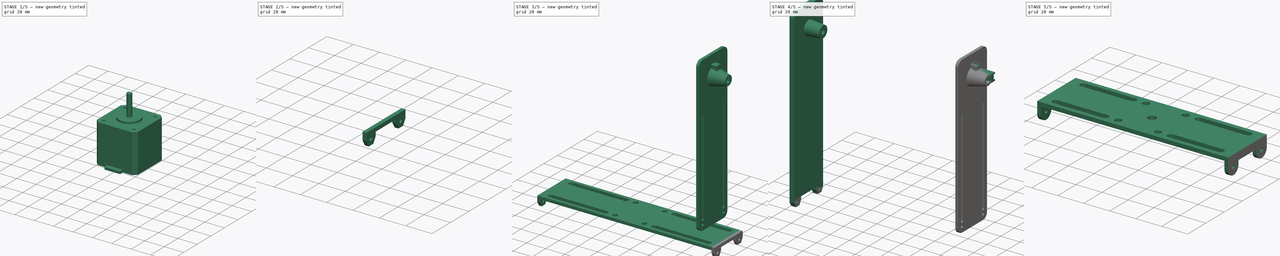
[diagram: build sequence overview — one tinted view per stage of 5, left to right]
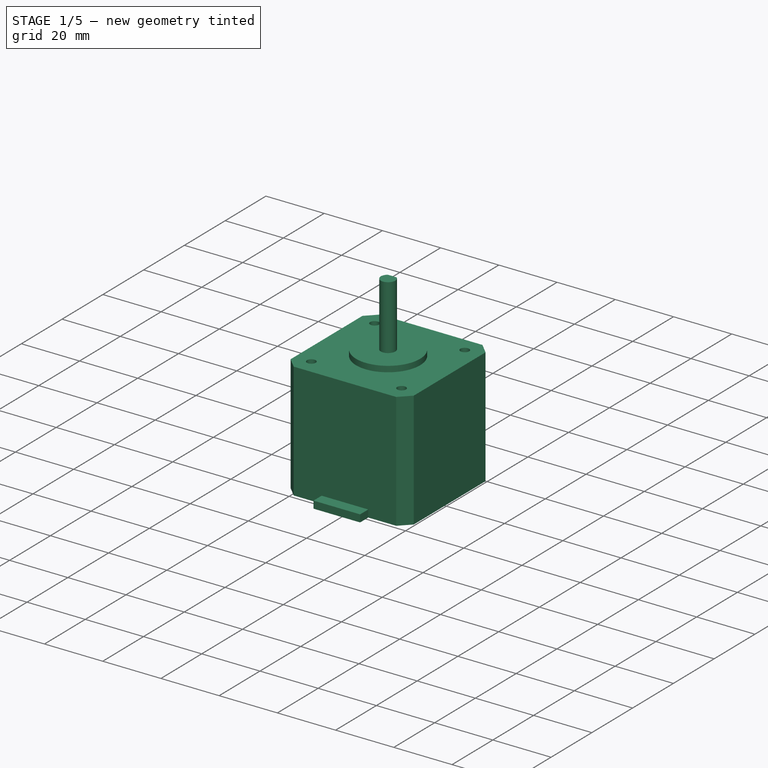
[diagram: stage 1 of 5 — iso view after this stage's code; geometry added in this stage tinted green]
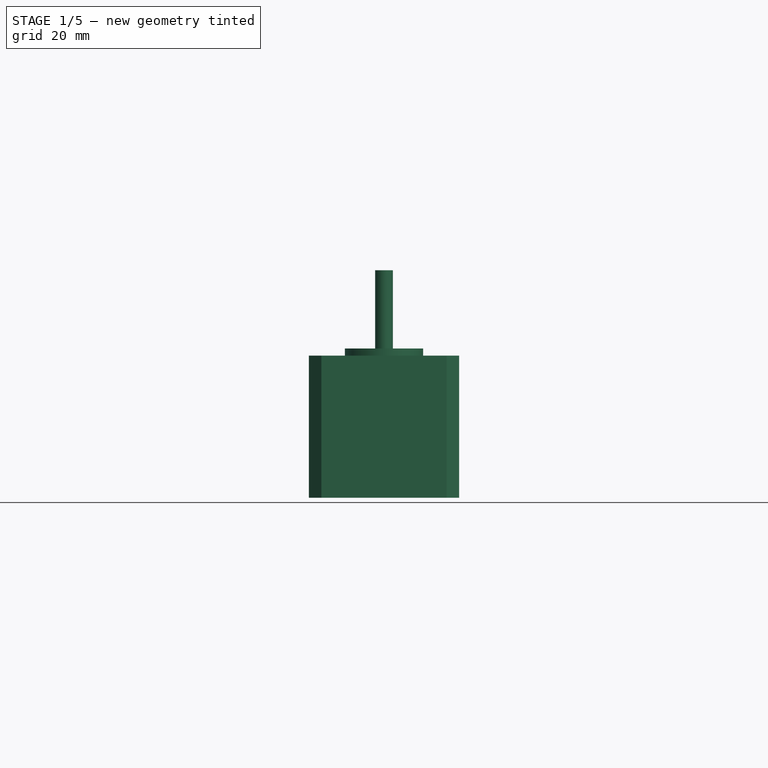
[diagram: stage 1 of 5 — front view after this stage's code; geometry added in this stage tinted green]
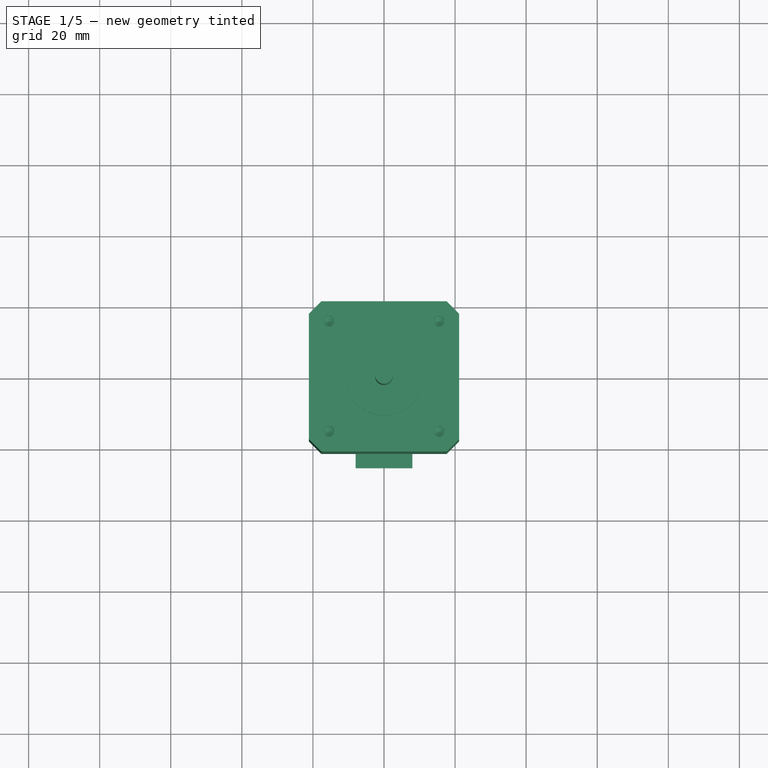
[diagram: stage 1 of 5 — top view after this stage's code; geometry added in this stage tinted green]
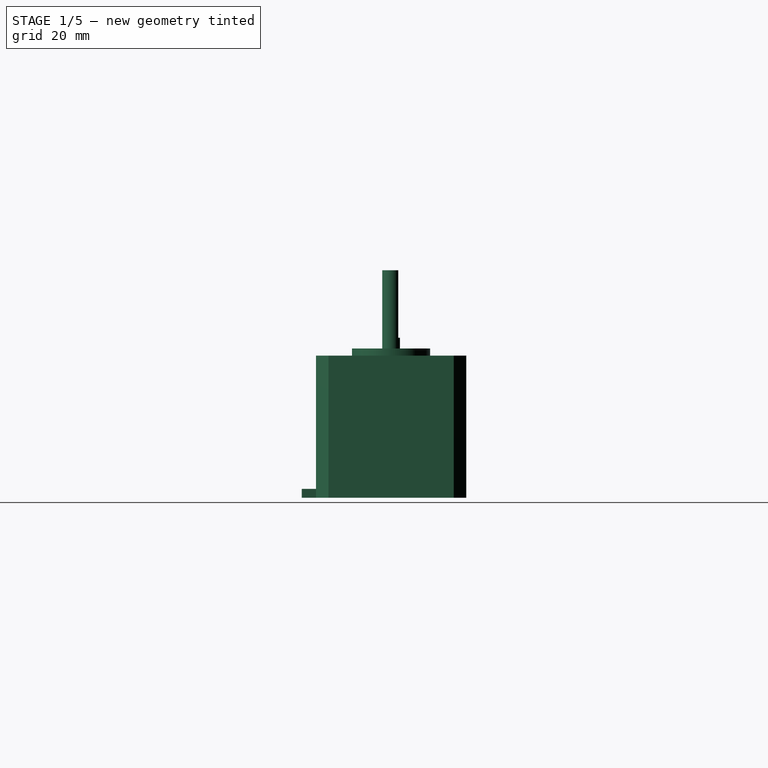
[diagram: stage 1 of 5 — right view after this stage's code; geometry added in this stage tinted green]
FCSTD DOCUMENT  (FreeCAD 0.21R33668 +26 (Git))
Label: elevation-rotation-table-save
License: All rights reserved
LicenseURL: http://en.wikipedia.org/wiki/All_rights_reserved
objects: Sketcher::SketchObject×41, PartDesign::SubShapeBinder×20, PartDesign::Pad×18, PartDesign::Body×7, PartDesign::Pocket×7, PartDesign::AdditiveLoft×4, PartDesign::Hole×2, PartDesign::Fillet×2, PartDesign::Plane×2, PartDesign::Mirrored×2, PartDesign::PolarPattern×1, PartDesign::SubtractiveLoft×1
note: 141 computed .brp shape members not serialized (recipe doc carries the construction recipe); baked Part::Feature solids carry a one-line shape summary decoded from their .brp

FEATURE [Sketcher::SketchObject] Sketch017
  FullyConstrained = true
  MapMode = 5
  Support = -> [XY_Plane004]
  sketch-geometry (18):
    g0: LineSegment StartX=-17.6145 StartY=21.15 StartZ=0 EndX=17.6145 EndY=21.15 EndZ=0
    g1: LineSegment StartX=17.6145 StartY=21.15 StartZ=0 EndX=21.15 EndY=17.6145 EndZ=0
    g2: LineSegment StartX=21.15 StartY=17.6145 StartZ=0 EndX=21.15 EndY=-17.6145 EndZ=0
    g3: LineSegment StartX=21.15 StartY=-17.6145 StartZ=0 EndX=17.6145 EndY=-21.15 EndZ=0
    g4: LineSegment StartX=17.6145 StartY=-21.15 StartZ=0 EndX=-17.6145 EndY=-21.15 EndZ=0
    g5: LineSegment StartX=-17.6145 StartY=-21.15 StartZ=0 EndX=-21.15 EndY=-17.6145 EndZ=0
    g6: LineSegment StartX=-21.15 StartY=-17.6145 StartZ=0 EndX=-21.15 EndY=17.6145 EndZ=0
    g7: LineSegment StartX=-21.15 StartY=17.6145 StartZ=0 EndX=-17.6145 EndY=21.15 EndZ=0
    g8: LineSegment StartX=-21.15 StartY=17.6145 StartZ=0 EndX=21.15 EndY=17.6145 EndZ=0
    g9: LineSegment StartX=-17.6145 StartY=-21.15 StartZ=0 EndX=-17.6145 EndY=21.15 EndZ=0
    g10: LineSegment StartX=17.6145 StartY=21.15 StartZ=0 EndX=17.6145 EndY=-21.15 EndZ=0
    g11: LineSegment StartX=21.15 StartY=-17.6145 StartZ=0 EndX=-21.15 EndY=-17.6145 EndZ=0
    g12: GeomPoint X=-17.6145 Y=17.6145 Z=0
    g13: GeomPoint X=17.6145 Y=17.6145 Z=0
    g14: GeomPoint X=17.6145 Y=-17.6145 Z=0
    g15: GeomPoint X=-17.6145 Y=-17.6145 Z=0
    g16: LineSegment StartX=-17.6145 StartY=17.6145 StartZ=0 EndX=17.6145 EndY=-17.6145 EndZ=0
    g17: LineSegment StartX=17.6145 StartY=17.6145 StartZ=0 EndX=-17.6145 EndY=-17.6145 EndZ=0
  constraints (44):
    c: Horizontal(g0)
    c: Coincident(g1,g0)
    c: Coincident(g2,g1)
    c: Vertical(g2)
    c: Coincident(g3,g2)
    c: Coincident(g4,g3)
    c: Horizontal(g4)
    c: Coincident(g5,g4)
    c: Coincident(g6,g5)
    c: Vertical(g6)
    c: Coincident(g7,g6)
    c: Coincident(g7,g0)
    c: Coincident(g8,g6)
    c: Coincident(g8,g1)
    c: Horizontal(g8)
    c: Coincident(g9,g4)
    c: Coincident(g9,g0)
    c: Vertical(g9)
    c: Distance(g8) = 42.3
    c: Distance(g9) = 42.3
    c: Equal(g3,g5)
    c: Equal(g1,g3)
    c: Equal(g7,g1)
    c: Coincident(g10,g0)
    c: Coincident(g10,g3)
    c: Vertical(g10)
    c: Coincident(g11,g2)
    c: Coincident(g11,g5)
    c: PointOnObject(g12,g8)
    c: PointOnObject(g13,g8)
    c: PointOnObject(g14,g11)
    c: PointOnObject(g15,g9)
    c: PointOnObject(g12,g9)
    c: PointOnObject(g14,g10)
    c: PointOnObject(g15,g11)
    c: Coincident(g16,g12)
    c: Coincident(g16,g14)
    c: Coincident(g17,g13)
    c: Coincident(g17,g15)
    c: PointOnObject(g-1,g16)
    c: PointOnObject(g13,g10)
    c: PointOnObject(g-1,g17)
    c: Equal(g2,g4)
    c: Distance(g1) = 5
FEATURE [PartDesign::Pad] Pad001
  Direction = (0,0,1)
  Length = 40
  Length2 = 10
  Profile = -> Sketch017
  ReferenceAxis = -> Sketch017 [N_Axis]
  Type = 0
FEATURE [Sketcher::SketchObject] Sketch018
  FullyConstrained = true
  MapMode = 5
  Placement = pos=(0,0,40) rot=(0,0,1;0rad)
  Support = -> [Pad001]
  sketch-geometry (10):
    g0: Circle CenterX=15.5 CenterY=15.5 CenterZ=0 NormalX=0 NormalY=0 NormalZ=1 AngleXU=0 Radius=1.5
    g1: Circle CenterX=-15.5 CenterY=15.5 CenterZ=0 NormalX=0 NormalY=0 NormalZ=1 AngleXU=0 Radius=1.5
    g2: Circle CenterX=-15.5 CenterY=-15.5 CenterZ=0 NormalX=0 NormalY=0 NormalZ=1 AngleXU=0 Radius=1.5
    g3: Circle CenterX=15.5 CenterY=-15.5 CenterZ=0 NormalX=0 NormalY=0 NormalZ=1 AngleXU=0 Radius=1.5
    g4: LineSegment StartX=-15.5 StartY=15.5 StartZ=0 EndX=15.5 EndY=15.5 EndZ=0
    g5: LineSegment StartX=15.5 StartY=15.5 StartZ=0 EndX=15.5 EndY=-15.5 EndZ=0
    g6: LineSegment StartX=15.5 StartY=-15.5 StartZ=0 EndX=-15.5 EndY=-15.5 EndZ=0
    g7: LineSegment StartX=-15.5 StartY=-15.5 StartZ=0 EndX=-15.5 EndY=15.5 EndZ=0
    g8: LineSegment StartX=-15.5 StartY=15.5 StartZ=0 EndX=15.5 EndY=-15.5 EndZ=0
    g9: LineSegment StartX=15.5 StartY=15.5 StartZ=0 EndX=-15.5 EndY=-15.5 EndZ=0
  constraints (24):
    c: Diameter(g0) = 3
    c: Equal(g1,g0)
    c: Equal(g1,g2)
    c: Equal(g0,g3)
    c: Coincident(g4,g5)
    c: Coincident(g5,g6)
    c: Coincident(g6,g7)
    c: Coincident(g7,g4)
    c: Horizontal(g4)
    c: Horizontal(g6)
    c: Vertical(g5)
    c: Vertical(g7)
    c: Coincident(g4,g1)
    c: Coincident(g5,g3)
    c: Coincident(g4,g0)
    c: Coincident(g6,g2)
    c: Distance(g4) = 31
    c: Coincident(g8,g1)
    c: Coincident(g8,g3)
    c: Coincident(g9,g0)
    c: Coincident(g9,g2)
    c: PointOnObject(g-1,g8)
    c: PointOnObject(g-1,g9)
    c: Equal(g4,g5)
FEATURE [PartDesign::Hole] Hole
  BaseFeature = -> Pad001
  CustomThreadClearance = 0
  Depth = 4.5
  DepthType = 0
  Diameter = 3
  DrillForDepth = false
  DrillPoint = 1
  DrillPointAngle = 118
  HoleCutCountersinkAngle = 90
  HoleCutCustomValues = false
  HoleCutDepth = 0
  HoleCutDiameter = 6.1
  HoleCutType = 0
  ModelThread = false
  Profile = -> Sketch018
  Tapered = false
  TaperedAngle = 90
  ThreadClass = 0
  ThreadDepth = 4.5
  ThreadDepthType = 0
  ThreadDirection = 0
  ThreadFit = 0
  ThreadSize = 0
  ThreadType = 0
  Threaded = false
  UseCustomThreadClearance = false
FEATURE [Sketcher::SketchObject] Sketch002
  ExternalGeometry = -> [Hole]
  FullyConstrained = true
  MapMode = 5
  Support = -> [XY_Plane004]
  sketch-geometry (4):
    g0: Circle CenterX=-15.5 CenterY=15.5 CenterZ=0 NormalX=0 NormalY=0 NormalZ=1 AngleXU=0 Radius=1.5
    g1: Circle CenterX=-15.5 CenterY=-15.5 CenterZ=0 NormalX=0 NormalY=0 NormalZ=1 AngleXU=0 Radius=1.5
    g2: Circle CenterX=15.5 CenterY=-15.5 CenterZ=0 NormalX=0 NormalY=0 NormalZ=1 AngleXU=0 Radius=1.5
    g3: Circle CenterX=15.5 CenterY=15.5 CenterZ=0 NormalX=0 NormalY=0 NormalZ=1 AngleXU=0 Radius=1.5
  constraints (8):
    c: Coincident(g0,g-3)
    c: Coincident(g1,g-6)
    c: Coincident(g2,g-5)
    c: Coincident(g3,g-4)
    c: Equal(g-3,g1)
    c: Equal(g2,g-3)
    c: Equal(g-4,g0)
    c: Equal(g0,g3)
FEATURE [PartDesign::Hole] Hole001
  BaseFeature = -> Hole
  CustomThreadClearance = 0
  Depth = 4.5
  DepthType = 0
  Diameter = 3
  DrillForDepth = false
  DrillPoint = 1
  DrillPointAngle = 118
  HoleCutCountersinkAngle = 90
  HoleCutCustomValues = false
  HoleCutDepth = 0
  HoleCutDiameter = 6.1
  HoleCutType = 0
  ModelThread = false
  Profile = -> Sketch002
  Reversed = true
  Tapered = false
  TaperedAngle = 90
  ThreadClass = 0
  ThreadDepth = 4.5
  ThreadDepthType = 0
  ThreadDirection = 0
  ThreadFit = 0
  ThreadSize = 0
  ThreadType = 0
  Threaded = false
  UseCustomThreadClearance = false
FEATURE [Sketcher::SketchObject] Sketch003
  FullyConstrained = true
  MapMode = 5
  Placement = pos=(0,0,40) rot=(0,0,1;0rad)
  Support = -> [Hole001]
  sketch-geometry (1):
    g0: Circle CenterX=0 CenterY=0 CenterZ=0 NormalX=0 NormalY=0 NormalZ=1 AngleXU=0 Radius=11
  constraints (2):
    c: Coincident(g0,g-1)
    c: Diameter(g0) = 22
FEATURE [PartDesign::Pad] Pad002
  BaseFeature = -> Hole001
  Direction = (0,0,1)
  Length = 2
  Length2 = 10
  Profile = -> Sketch003
  ReferenceAxis = -> Sketch003 [N_Axis]
  Type = 0
FEATURE [Sketcher::SketchObject] Sketch004
  FullyConstrained = true
  MapMode = 5
  Placement = pos=(0,0,42) rot=(0,0,1;0rad)
  Support = -> [Pad002]
  sketch-geometry (4):
    g0: ArcOfCircle CenterX=0 CenterY=0 CenterZ=0 NormalX=0 NormalY=0 NormalZ=1 AngleXU=0 Radius=2.5 StartAngle=2.2143 EndAngle=7.21048
    g1: LineSegment StartX=-1.5 StartY=2 StartZ=0 EndX=1.5 EndY=2 EndZ=0
    g2: GeomPoint X=0 Y=2 Z=0
    g3: GeomPoint X=0 Y=-2.5 Z=0
  constraints (10):
    c: Coincident(g0,g-1)
    c: Coincident(g1,g0)
    c: Coincident(g1,g0)
    c: Parallel(g1,g-1)
    c: Diameter(g0) = 5
    c: PointOnObject(g2,g1)
    c: PointOnObject(g2,g-2)
    c: PointOnObject(g3,g0)
    c: Distance(g3,g2) = 4.5
    c: PointOnObject(g3,g-2)
FEATURE [PartDesign::Pad] Pad003
  BaseFeature = -> Pad002
  Direction = (0,0,1)
  Length = 22
  Length2 = 10
  Profile = -> Sketch004
  ReferenceAxis = -> Sketch004 [N_Axis]
  Type = 0
FEATURE [Sketcher::SketchObject] Sketch005
  FullyConstrained = true
  MapMode = 5
  Placement = pos=(0,0,42) rot=(0,0,1;0rad)
  Support = -> [Pad002]
  sketch-geometry (1):
    g0: Circle CenterX=0 CenterY=0 CenterZ=0 NormalX=0 NormalY=0 NormalZ=1 AngleXU=0 Radius=2.5
  constraints (2):
    c: Coincident(g0,g-1)
    c: Diameter(g0) = 5
FEATURE [PartDesign::Pad] Pad004
  BaseFeature = -> Pad003
  Direction = (0,0,1)
  Length = 3
  Length2 = 10
  Profile = -> Sketch005
  ReferenceAxis = -> Sketch005 [N_Axis]
  Type = 0
FEATURE [Sketcher::SketchObject] Sketch006
  ExternalGeometry = -> [Pad004]
  FullyConstrained = true
  MapMode = 5
  Placement = pos=(0,0,0) rot=(1,0,0;3.14159rad)
  Support = -> [Pad004]
  sketch-geometry (4):
    g0: LineSegment StartX=-8 StartY=21.15 StartZ=0 EndX=8 EndY=21.15 EndZ=0
    g1: LineSegment StartX=8 StartY=21.15 StartZ=0 EndX=8 EndY=25.15 EndZ=0
    g2: LineSegment StartX=8 StartY=25.15 StartZ=0 EndX=-8 EndY=25.15 EndZ=0
    g3: LineSegment StartX=-8 StartY=25.15 StartZ=0 EndX=-8 EndY=21.15 EndZ=0
  constraints (11):
    c: Coincident(g0,g1)
    c: Coincident(g1,g2)
    c: Coincident(g2,g3)
    c: Coincident(g3,g0)
    c: Horizontal(g2)
    c: Vertical(g1)
    c: Vertical(g3)
    c: PointOnObject(g0,g-3)
    c: Symmetric(g0,g0,g-2)
    c: Distance(g2) = 16
    c: Distance(g1) = 4
FEATURE [PartDesign::Pad] Pad005
  BaseFeature = -> Pad004
  Direction = (0,0,-1)
  Length = 2.5
  Length2 = 10
  Profile = -> Sketch006
  ReferenceAxis = -> Sketch006 [N_Axis]
  Reversed = true
  Type = 0
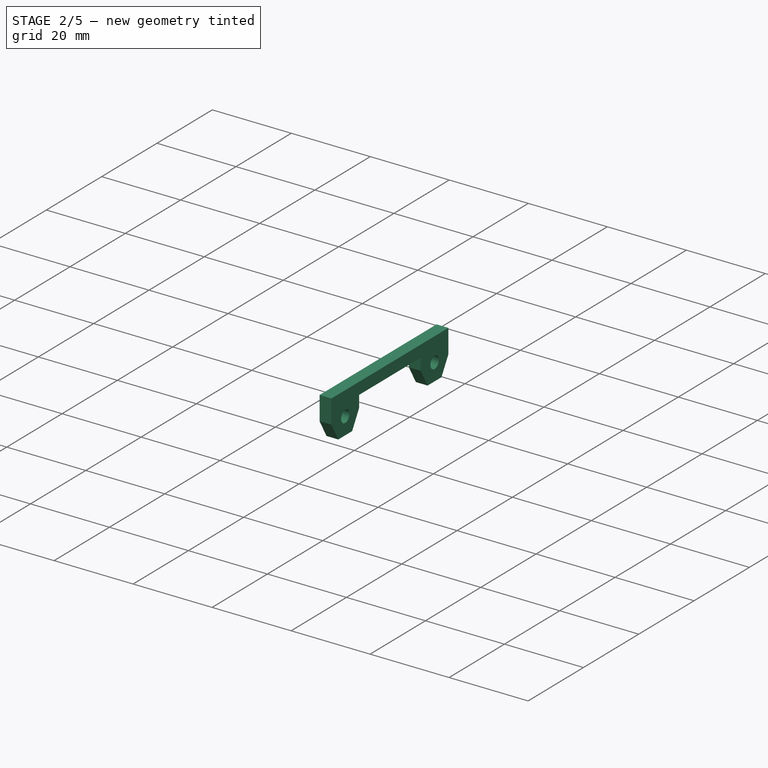
[diagram: stage 2 of 5 — iso view after this stage's code; geometry added in this stage tinted green]
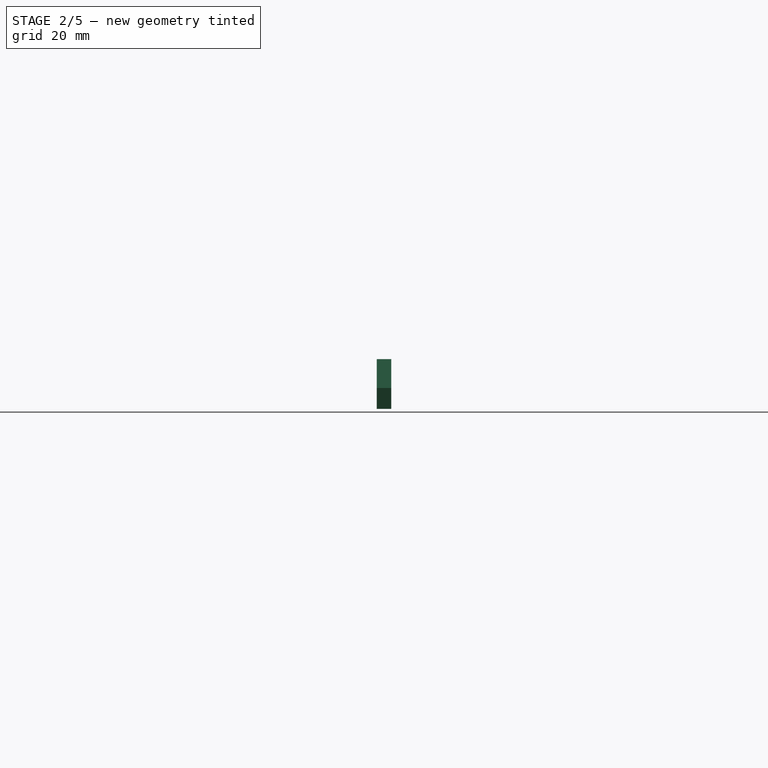
[diagram: stage 2 of 5 — front view after this stage's code; geometry added in this stage tinted green]
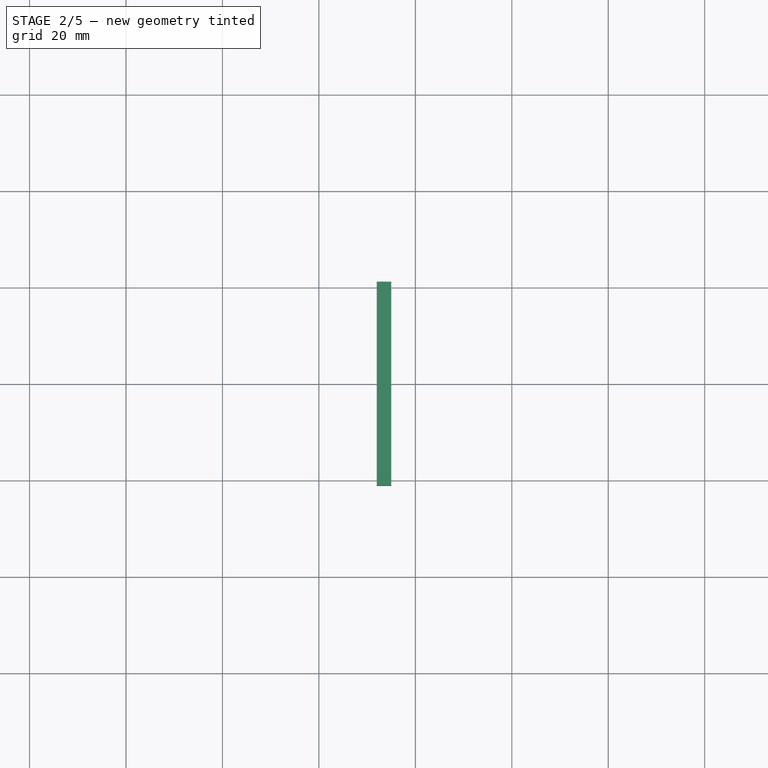
[diagram: stage 2 of 5 — top view after this stage's code; geometry added in this stage tinted green]
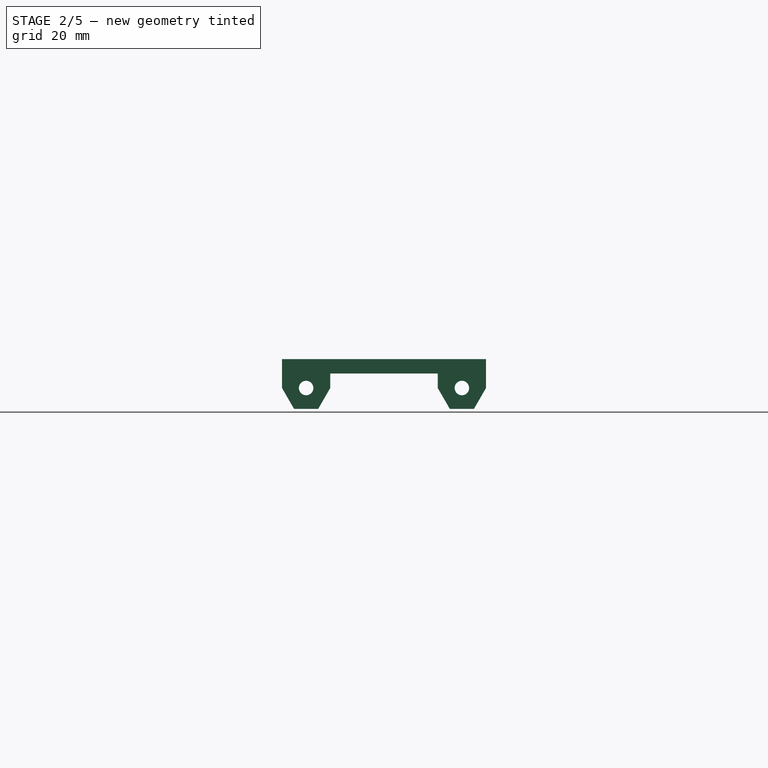
[diagram: stage 2 of 5 — right view after this stage's code; geometry added in this stage tinted green]
FEATURE [Sketcher::SketchObject] Sketch007
  ExternalGeometry = -> [Pad005]
  FullyConstrained = true
  MapMode = 5
  Placement = pos=(0,-21.15,0) rot=(1,0,0;1.5708rad)
  Support = -> [Pad005]
  sketch-geometry (14):
    g0: LineSegment StartX=-4.2 StartY=9 StartZ=0 EndX=-8 EndY=9 EndZ=0
    g1: LineSegment StartX=-8 StartY=9 StartZ=0 EndX=-8 EndY=2.5 EndZ=0
    g2: LineSegment StartX=-8 StartY=2.5 StartZ=0 EndX=8 EndY=2.5 EndZ=0
    g3: LineSegment StartX=8 StartY=2.5 StartZ=0 EndX=8 EndY=9 EndZ=0
    g4: LineSegment StartX=8 StartY=9 StartZ=0 EndX=4.2 EndY=9 EndZ=0
    g5: LineSegment StartX=4.2 StartY=9 StartZ=0 EndX=4.2 EndY=8.4 EndZ=0
    g6: LineSegment StartX=4.2 StartY=8.4 StartZ=0 EndX=7.4 EndY=8.4 EndZ=0
    g7: LineSegment StartX=7.4 StartY=8.4 StartZ=0 EndX=7.4 EndY=3.1 EndZ=0
    g8: LineSegment StartX=7.4 StartY=3.1 StartZ=0 EndX=-7.4 EndY=3.1 EndZ=0
    g9: LineSegment StartX=-7.4 StartY=3.1 StartZ=0 EndX=-7.4 EndY=8.4 EndZ=0
    g10: LineSegment StartX=-7.4 StartY=8.4 StartZ=0 EndX=-4.2 EndY=8.4 EndZ=0
    g11: LineSegment StartX=-4.2 StartY=8.4 StartZ=0 EndX=-4.2 EndY=9 EndZ=0
    g12: LineSegment StartX=7.4 StartY=3.1 StartZ=0 EndX=7.4 EndY=2.5 EndZ=0
    g13: LineSegment StartX=7.4 StartY=3.1 StartZ=0 EndX=8 EndY=3.1 EndZ=0
  constraints (39):
    c: Horizontal(g0)
    c: Coincident(g1,g0)
    c: Coincident(g1,g-3)
    c: Coincident(g2,g1)
    c: Coincident(g2,g-3)
    c: Coincident(g3,g2)
    c: Coincident(g4,g3)
    c: Horizontal(g4)
    c: Equal(g4,g0)
    c: Vertical(g1)
    c: Vertical(g3)
    c: Equal(g1,g3)
    c: Distance(g3) = 6.5
    c: Distance(g4) = 3.8
    c: Coincident(g5,g4)
    c: Vertical(g5)
    c: Coincident(g6,g5)
    c: Horizontal(g6)
    c: Coincident(g7,g6)
    c: Vertical(g7)
    c: Coincident(g8,g7)
    c: Horizontal(g8)
    c: Coincident(g9,g8)
    c: Vertical(g9)
    c: Coincident(g10,g9)
    c: Coincident(g11,g10)
    c: Coincident(g11,g0)
    c: Vertical(g11)
    c: Horizontal(g10)
    c: Distance(g5) = 0.6
    c: Symmetric(g9,g6,g-2)
    c: Coincident(g12,g7)
    c: PointOnObject(g12,g2)
    c: Vertical(g12)
    c: Equal(g12,g5)
    c: Coincident(g13,g7)
    c: PointOnObject(g13,g3)
    c: Horizontal(g13)
    c: Equal(g13,g5)
FEATURE [PartDesign::Pad] Pad006
  BaseFeature = -> Pad005
  Direction = (0,-1,2e-16)
  Length = 5
  Length2 = 10
  Profile = -> Sketch007
  ReferenceAxis = -> Sketch007 [N_Axis]
  Type = 0
FEATURE [Sketcher::SketchObject] Sketch008
  ExternalGeometry = -> [Pad006]
  FullyConstrained = true
  MapMode = 5
  Placement = pos=(0,-21.15,0) rot=(1,0,0;1.5708rad)
  Support = -> [Pad006]
  sketch-geometry (30):
    g0: LineSegment StartX=-5.5 StartY=6.6 StartZ=0 EndX=-5 EndY=6.6 EndZ=0
    g1: LineSegment StartX=-5 StartY=6.6 StartZ=0 EndX=-5 EndY=6.1 EndZ=0
    g2: LineSegment StartX=-5 StartY=6.1 StartZ=0 EndX=-5.5 EndY=6.1 EndZ=0
    g3: LineSegment StartX=-5.5 StartY=6.1 StartZ=0 EndX=-5.5 EndY=6.6 EndZ=0
    g4: LineSegment StartX=-3.4 StartY=6.6 StartZ=0 EndX=-2.9 EndY=6.6 EndZ=0
    g5: LineSegment StartX=-2.9 StartY=6.6 StartZ=0 EndX=-2.9 EndY=6.1 EndZ=0
    g6: LineSegment StartX=-2.9 StartY=6.1 StartZ=0 EndX=-3.4 EndY=6.1 EndZ=0
    g7: LineSegment StartX=-3.4 StartY=6.1 StartZ=0 EndX=-3.4 EndY=6.6 EndZ=0
    g8: LineSegment StartX=-1.3 StartY=6.6 StartZ=0 EndX=-0.8 EndY=6.6 EndZ=0
    g9: LineSegment StartX=-0.8 StartY=6.6 StartZ=0 EndX=-0.8 EndY=6.1 EndZ=0
    g10: LineSegment StartX=-0.8 StartY=6.1 StartZ=0 EndX=-1.3 EndY=6.1 EndZ=0
    g11: LineSegment StartX=-1.3 StartY=6.1 StartZ=0 EndX=-1.3 EndY=6.6 EndZ=0
    g12: LineSegment StartX=0.8 StartY=6.6 StartZ=0 EndX=1.3 EndY=6.6 EndZ=0
    g13: LineSegment StartX=1.3 StartY=6.6 StartZ=0 EndX=1.3 EndY=6.1 EndZ=0
    g14: LineSegment StartX=1.3 StartY=6.1 StartZ=0 EndX=0.8 EndY=6.1 EndZ=0
    g15: LineSegment StartX=0.8 StartY=6.1 StartZ=0 EndX=0.8 EndY=6.6 EndZ=0
    g16: LineSegment StartX=2.9 StartY=6.6 StartZ=0 EndX=3.4 EndY=6.6 EndZ=0
    g17: LineSegment StartX=3.4 StartY=6.6 StartZ=0 EndX=3.4 EndY=6.1 EndZ=0
    g18: LineSegment StartX=3.4 StartY=6.1 StartZ=0 EndX=2.9 EndY=6.1 EndZ=0
    g19: LineSegment StartX=2.9 StartY=6.1 StartZ=0 EndX=2.9 EndY=6.6 EndZ=0
    g20: LineSegment StartX=5 StartY=6.6 StartZ=0 EndX=5.5 EndY=6.6 EndZ=0
    g21: LineSegment StartX=5.5 StartY=6.6 StartZ=0 EndX=5.5 EndY=6.1 EndZ=0
    g22: LineSegment StartX=5.5 StartY=6.1 StartZ=0 EndX=5 EndY=6.1 EndZ=0
    g23: LineSegment StartX=5 StartY=6.1 StartZ=0 EndX=5 EndY=6.6 EndZ=0
    g24: LineSegment StartX=-7.4 StartY=6.1 StartZ=0 EndX=7.4 EndY=6.1 EndZ=0
    g25: LineSegment StartX=-5 StartY=6.6 StartZ=0 EndX=-3.4 EndY=6.6 EndZ=0
    g26: LineSegment StartX=-2.9 StartY=6.6 StartZ=0 EndX=-1.3 EndY=6.6 EndZ=0
    g27: LineSegment StartX=-0.8 StartY=6.6 StartZ=0 EndX=0.8 EndY=6.6 EndZ=0
    g28: LineSegment StartX=1.3 StartY=6.6 StartZ=0 EndX=2.9 EndY=6.6 EndZ=0
    g29: LineSegment StartX=3.4 StartY=6.6 StartZ=0 EndX=5 EndY=6.6 EndZ=0
  constraints (85):
    c: Coincident(g0,g1)
    c: Coincident(g1,g2)
    c: Coincident(g2,g3)
    c: Coincident(g3,g0)
    c: Horizontal(g0)
    c: Horizontal(g2)
    c: Vertical(g1)
    c: Vertical(g3)
    c: Coincident(g4,g5)
    c: Coincident(g5,g6)
    c: Coincident(g6,g7)
    c: Coincident(g7,g4)
    c: Horizontal(g4)
    c: Horizontal(g6)
    c: Vertical(g5)
    c: Vertical(g7)
    c: Coincident(g8,g9)
    c: Coincident(g9,g10)
    c: Coincident(g10,g11)
    c: Coincident(g11,g8)
    c: Horizontal(g8)
    c: Horizontal(g10)
    c: Vertical(g9)
    c: Vertical(g11)
    c: Coincident(g12,g13)
    c: Coincident(g13,g14)
    c: Coincident(g14,g15)
    c: Coincident(g15,g12)
    c: Horizontal(g12)
    c: Horizontal(g14)
    c: Vertical(g13)
    c: Vertical(g15)
    c: Coincident(g16,g17)
    c: Coincident(g17,g18)
    c: Coincident(g18,g19)
    c: Coincident(g19,g16)
    c: Horizontal(g16)
    c: Horizontal(g18)
    c: Vertical(g17)
    c: Vertical(g19)
    c: Coincident(g20,g21)
    c: Coincident(g21,g22)
    c: Coincident(g22,g23)
    c: Coincident(g23,g20)
    c: Horizontal(g20)
    c: Horizontal(g22)
    c: Vertical(g21)
    c: Vertical(g23)
    c: Equal(g20,g21)
    c: Equal(g16,g17)
    c: Equal(g12,g13)
    c: Equal(g8,g9)
    c: Equal(g4,g5)
    c: Equal(g0,g1)
    c: Equal(g1,g5)
    c: Equal(g5,g9)
    c: Equal(g9,g13)
    c: Equal(g13,g17)
    c: Equal(g17,g21)
    c: PointOnObject(g2,g24)
    c: PointOnObject(g6,g24)
    c: PointOnObject(g10,g24)
    c: PointOnObject(g24,g-4)
    c: Distance(g0) = 0.5
    c: Coincident(g25,g0)
    c: Coincident(g25,g4)
    c: Horizontal(g25)
    c: Coincident(g26,g4)
    c: Coincident(g26,g8)
    c: Coincident(g27,g8)
    c: Coincident(g27,g12)
    c: Horizontal(g27)
    c: Coincident(g28,g12)
    c: Coincident(g28,g16)
    c: Horizontal(g28)
    c: Coincident(g29,g16)
    c: Coincident(g29,g20)
    c: Equal(g25,g26)
    c: Equal(g26,g27)
    c: Equal(g27,g28)
    c: Equal(g28,g29)
    c: Distance(g25) = 1.6
    c: Distance(g24,g-5) = 3
    c: Symmetric(g2,g21,g-2)
    c: PointOnObject(g24,g-3)
FEATURE [PartDesign::Pad] Pad007
  BaseFeature = -> Pad006
  Direction = (0,-1,2e-16)
  Length = 4
  Length2 = 10
  Profile = -> Sketch008
  ReferenceAxis = -> Sketch008 [N_Axis]
  Type = 0
FEATURE [PartDesign::Body] Body  label="Motor-NEMA-17"
  Group = -> [Sketch017,Pad001,Sketch018,Hole,Sketch002,Hole001,Sketch003,Pad002,Sketch004,Pad003,Sketch005,Pad004,Sketch006,Pad005,Sketch007,Pad006,Sketch008,Pad007]
  Origin = -> Origin
  Placement = pos=(0,0,0) rot=(0,-1,0;1.5708rad)
  Tip = -> Pad007
FEATURE [PartDesign::SubShapeBinder] Binder
  BindCopyOnChange = 0
  BindMode = 0
  ClaimChildren = false
  Context = -> Body001 [Binder.]
  Fuse = false
  MakeFace = true
  OffsetFill = false
  OffsetIntersection = false
  OffsetJoinType = 0
  OffsetOpenResult = false
  PartialLoad = false
  Relative = true
  Support = -> [Body[Pad007.Face5]]
  _Version = 2
FEATURE [Sketcher::SketchObject] Sketch
  ExternalGeometry = -> [Binder]
  FullyConstrained = true
  MapMode = 5
  Placement = pos=(-40,0,0) rot=(0.57735,-0.57735,-0.57735;2.0944rad)
  Support = -> [Binder]
  sketch-geometry (47):
    g0: LineSegment StartX=-21.15 StartY=-17.6145 StartZ=0 EndX=-21.15 EndY=-150 EndZ=0
    g1: LineSegment StartX=21.15 StartY=-17.6145 StartZ=0 EndX=21.15 EndY=-150 EndZ=0
    g2: LineSegment StartX=-21.15 StartY=-150 StartZ=0 EndX=21.15 EndY=-150 EndZ=0
    g3: LineSegment StartX=-21.15 StartY=-150 StartZ=0 EndX=-21.15 EndY=-156 EndZ=0
    g4: LineSegment StartX=21.15 StartY=-150 StartZ=0 EndX=21.15 EndY=-156 EndZ=0
    g5: LineSegment StartX=-21.15 StartY=-156 StartZ=0 EndX=-18.65 EndY=-160.33 EndZ=0
    g6: LineSegment StartX=-18.65 StartY=-160.33 StartZ=0 EndX=-13.65 EndY=-160.33 EndZ=0
    g7: LineSegment StartX=-13.65 StartY=-160.33 StartZ=0 EndX=-11.15 EndY=-156 EndZ=0
    g8: LineSegment StartX=-11.15 StartY=-156 StartZ=0 EndX=-11.15 EndY=-153 EndZ=0
    g9: LineSegment StartX=-11.15 StartY=-153 StartZ=0 EndX=11.15 EndY=-153 EndZ=0
    g10: LineSegment StartX=11.15 StartY=-153 StartZ=0 EndX=11.15 EndY=-156 EndZ=0
    g11: LineSegment StartX=11.15 StartY=-156 StartZ=0 EndX=13.65 EndY=-160.33 EndZ=0
    g12: LineSegment StartX=13.65 StartY=-160.33 StartZ=0 EndX=18.65 EndY=-160.33 EndZ=0
    g13: LineSegment StartX=18.65 StartY=-160.33 StartZ=0 EndX=21.15 EndY=-156 EndZ=0
    g14: Circle CenterX=-16.15 CenterY=-156 CenterZ=0 NormalX=0 NormalY=0 NormalZ=1 AngleXU=0 Radius=1.5
    g15: LineSegment StartX=-21.15 StartY=-156 StartZ=0 EndX=-11.15 EndY=-156 EndZ=0
    g16: Circle CenterX=-16.15 CenterY=-156 CenterZ=0 NormalX=0 NormalY=0 NormalZ=1 AngleXU=0 Radius=5
    g17: Circle CenterX=16.15 CenterY=-156 CenterZ=0 NormalX=0 NormalY=0 NormalZ=1 AngleXU=0 Radius=1.5
    g18: LineSegment StartX=11.15 StartY=-156 StartZ=0 EndX=21.15 EndY=-156 EndZ=0
    g19: Circle CenterX=16.15 CenterY=-156 CenterZ=0 NormalX=0 NormalY=0 NormalZ=1 AngleXU=0 Radius=5
    g20: ArcOfCircle CenterX=-15.5 CenterY=15.5 CenterZ=0 NormalX=0 NormalY=0 NormalZ=1 AngleXU=0 Radius=5.65 StartAngle=1.5708 EndAngle=3.14159
    g21: ArcOfCircle CenterX=15.5 CenterY=15.5 CenterZ=0 NormalX=0 NormalY=0 NormalZ=1 AngleXU=0 Radius=5.65 StartAngle=2e-16 EndAngle=1.5708
    g22: LineSegment StartX=-15.5 StartY=21.15 StartZ=0 EndX=15.5 EndY=21.15 EndZ=0
    g23: LineSegment StartX=-21.15 StartY=15.5 StartZ=0 EndX=-21.15 EndY=-17.6145 EndZ=0
    g24: LineSegment StartX=21.15 StartY=-17.6145 StartZ=0 EndX=21.15 EndY=15.5 EndZ=0
    g25: LineSegment StartX=-13.1597 StartY=-7.50969 StartZ=0 EndX=-13.1597 EndY=7.50969 EndZ=0
    g26: LineSegment StartX=-7.50969 StartY=13.1597 StartZ=0 EndX=7.50969 EndY=13.1597 EndZ=0
    g27: LineSegment StartX=13.1597 StartY=7.50969 StartZ=0 EndX=13.1597 EndY=-7.50969 EndZ=0
    g28: LineSegment StartX=-7.50969 StartY=-13.1597 StartZ=0 EndX=7.50969 EndY=-13.1597 EndZ=0
    g29: ArcOfCircle CenterX=-7.50969 CenterY=-7.50969 CenterZ=0 NormalX=0 NormalY=0 NormalZ=1 AngleXU=0 Radius=5.65 StartAngle=3.14159 EndAngle=4.71239
    g30: ArcOfCircle CenterX=-7.50969 CenterY=7.50969 CenterZ=0 NormalX=0 NormalY=0 NormalZ=1 AngleXU=0 Radius=5.65 StartAngle=1.5708 EndAngle=3.14159
    g31: ArcOfCircle CenterX=7.50969 CenterY=7.50969 CenterZ=0 NormalX=0 NormalY=0 NormalZ=1 AngleXU=0 Radius=5.65 StartAngle=2e-16 EndAngle=1.5708
    g32: ArcOfCircle CenterX=7.50969 CenterY=-7.50969 CenterZ=0 NormalX=0 NormalY=0 NormalZ=1 AngleXU=0 Radius=5.65 StartAngle=4.71239 EndAngle=6.28319
    g33: LineSegment StartX=-15.5 StartY=15.5 StartZ=0 EndX=0 EndY=0 EndZ=0
    g34: LineSegment StartX=0 StartY=0 StartZ=0 EndX=15.5 EndY=15.5 EndZ=0
    g35: LineSegment StartX=0 StartY=0 StartZ=0 EndX=15.5 EndY=-15.5 EndZ=0
    g36: LineSegment StartX=0 StartY=0 StartZ=0 EndX=-15.5 EndY=-15.5 EndZ=0
    g37: LineSegment StartX=7.50969 StartY=7.50969 StartZ=0 EndX=13.1597 EndY=7.50969 EndZ=0
    g38: LineSegment StartX=15.5 StartY=15.5 StartZ=0 EndX=21.15 EndY=15.5 EndZ=0
    g39: LineSegment StartX=-15.5 StartY=15.5 StartZ=0 EndX=-19.4952 EndY=19.4952 EndZ=0
    g40: LineSegment StartX=-15.5 StartY=15.5 StartZ=0 EndX=-11.5048 EndY=11.5048 EndZ=0
    g41: Circle CenterX=15.5 CenterY=-15.5 CenterZ=0 NormalX=0 NormalY=0 NormalZ=1 AngleXU=0 Radius=2
    g42: Circle CenterX=-15.5 CenterY=-15.5 CenterZ=0 NormalX=0 NormalY=0 NormalZ=1 AngleXU=0 Radius=2
    g43: Circle CenterX=15.5 CenterY=15.5 CenterZ=0 NormalX=0 NormalY=0 NormalZ=1 AngleXU=0 Radius=2
    g44: Circle CenterX=-15.5 CenterY=15.5 CenterZ=0 NormalX=0 NormalY=0 NormalZ=1 AngleXU=0 Radius=2
    g45: LineSegment StartX=15.5 StartY=15.5 StartZ=0 EndX=15.5 EndY=17 EndZ=0
    g46: LineSegment StartX=15.5 StartY=17 StartZ=0 EndX=15.5 EndY=17.5 EndZ=0
  constraints (115):
    c: Vertical(g0)
    c: Vertical(g1)
    c: Coincident(g2,g0)
    c: Coincident(g2,g1)
    c: Horizontal(g2)
    c: Coincident(g3,g0)
    c: Vertical(g3)
    c: Coincident(g4,g1)
    c: Vertical(g4)
    c: Equal(g3,g4)
    c: Coincident(g5,g3)
    c: Coincident(g6,g5)
    c: Horizontal(g6)
    c: Coincident(g7,g6)
    c: Coincident(g8,g7)
    c: Vertical(g8)
    c: Horizontal(g9)
    c: Coincident(g10,g9)
    c: Vertical(g10)
    c: Coincident(g11,g10)
    c: Horizontal(g12)
    c: Coincident(g13,g12)
    c: Coincident(g13,g4)
    c: Equal(g13,g11)
    c: Equal(g11,g7)
    c: Equal(g7,g5)
    c: Equal(g8,g10)
    c: Coincident(g9,g8)
    c: Coincident(g11,g12)
    c: Equal(g12,g6)
    c: Coincident(g15,g3)
    c: Coincident(g15,g7)
    c: Horizontal(g15)
    c: PointOnObject(g14,g15)
    c: Diameter(g14) = 3
    c: Coincident(g16,g14)
    c: PointOnObject(g6,g16)
    c: PointOnObject(g3,g16)
    c: PointOnObject(g5,g16)
    c: Diameter(g16) = 10
    c: Distance(g8,g2) = 3
    c: Equal(g6,g7)
    c: Coincident(g18,g10)
    c: Coincident(g18,g4)
    c: PointOnObject(g17,g18)
    c: Equal(g17,g14)
    c: Coincident(g19,g17)
    c: PointOnObject(g12,g19)
    c: PointOnObject(g11,g19)
    c: PointOnObject(g10,g19)
    c: Distance(g8) = 3
    c: Coincident(g20,g-6)
    c: PointOnObject(g20,g-7)
    c: PointOnObject(g21,g-8)
    c: Tangent(g22,g20) = 1.5708
    c: Tangent(g22,g21) = 1.5708
    c: Coincident(g0,g-7)
    c: Coincident(g1,g-8)
    c: Coincident(g23,g0)
    c: Coincident(g24,g1)
    c: Tangent(g24,g21) = -1.5708
    c: Tangent(g23,g20) = -1.5708
    c: Distance(g-1,g2) = 150
    c: Vertical(g25)
    c: Horizontal(g26)
    c: Vertical(g27)
    c: Horizontal(g28)
    c: Tangent(g32,g27) = 1.5708
    c: Tangent(g31,g27) = 1.5708
    c: Tangent(g31,g26) = 1.5708
    c: Tangent(g30,g26) = 1.5708
    c: Tangent(g30,g25) = 1.5708
    c: Tangent(g29,g25) = 1.5708
    c: Tangent(g29,g28) = -1.5708
    c: Tangent(g32,g28) = -1.5708
    c: Equal(g32,g31)
    c: Equal(g31,g30)
    c: Equal(g30,g29)
    c: Coincident(g33,g20)
    c: Coincident(g33,g-1)
    c: Coincident(g34,g33)
    c: Coincident(g34,g21)
    c: Coincident(g35,g33)
    c: Coincident(g36,g33)
    c: PointOnObject(g29,g36)
    c: PointOnObject(g32,g35)
    c: PointOnObject(g31,g34)
    c: Coincident(g36,g-4)
    c: Coincident(g35,g-5)
    c: Coincident(g21,g-10)
    c: Coincident(g38,g21)
    c: Coincident(g38,g21)
    c: Coincident(g37,g31)
    c: Coincident(g37,g27)
    c: Equal(g38,g37)
    c: Coincident(g39,g20)
    c: PointOnObject(g39,g20)
    c: Coincident(g40,g20)
    c: PointOnObject(g40,g33)
    c: Symmetric(g39,g40,g20)
    c: PointOnObject(g40,g30)
    c: Coincident(g41,g35)
    c: Coincident(g42,g36)
    c: Coincident(g43,g21)
    c: Coincident(g44,g20)
    c: Equal(g41,g42)
    c: Equal(g42,g44)
    c: Equal(g44,g43)
    c: Coincident(g45,g21)
    c: PointOnObject(g45,g-10)
    c: Vertical(g45)
    c: Coincident(g46,g45)
    c: PointOnObject(g46,g43)
    c: Vertical(g46)
    c: Distance(g45,g46) = 0.5
FEATURE [PartDesign::Pad] Pad
  Direction = (-1,1e-16,1e-16)
  Length = 5
  Length2 = 10
  Profile = -> Sketch
  ReferenceAxis = -> Sketch [N_Axis]
  Type = 0
FEATURE [Sketcher::SketchObject] Sketch019
  ExternalGeometry = -> [Pad]
  FullyConstrained = true
  MapMode = 5
  Placement = pos=(-45,8.1e-15,5.4e-15) rot=(-0.57735,0.57735,0.57735;4.18879rad)
  Support = -> [Pad]
  sketch-geometry (4):
    g0: LineSegment StartX=-7.50969 StartY=13.1597 StartZ=0 EndX=7.50969 EndY=13.1597 EndZ=0
    g1: LineSegment StartX=7.50969 StartY=13.1597 StartZ=0 EndX=7.50969 EndY=21.15 EndZ=0
    g2: LineSegment StartX=7.50969 StartY=21.15 StartZ=0 EndX=-7.50969 EndY=21.15 EndZ=0
    g3: LineSegment StartX=-7.50969 StartY=21.15 StartZ=0 EndX=-7.50969 EndY=13.1597 EndZ=0
  constraints (10):
    c: Coincident(g0,g1)
    c: Coincident(g1,g2)
    c: Coincident(g2,g3)
    c: Coincident(g3,g0)
    c: Horizontal(g2)
    c: Vertical(g1)
    c: Vertical(g3)
    c: Coincident(g0,g-3)
    c: PointOnObject(g1,g-4)
    c: Coincident(g0,g-3)
FEATURE [Sketcher::SketchObject] Sketch020
  AttachmentOffset = pos=(0,0,15) rot=(0,0,1;0rad)
  ExternalGeometry = -> [Pad]
  FullyConstrained = true
  MapMode = 5
  Placement = pos=(-60,8.1e-15,5.4e-15) rot=(-0.57735,0.57735,0.57735;4.18879rad)
  Support = -> [Pad]
  sketch-geometry (5):
    g0: Circle CenterX=0 CenterY=0 CenterZ=0 NormalX=0 NormalY=0 NormalZ=1 AngleXU=0 Radius=21.15
    g1: LineSegment StartX=7.50969 StartY=13.1597 StartZ=0 EndX=-7.50969 EndY=13.1597 EndZ=0
    g2: LineSegment StartX=-7.50969 StartY=13.1597 StartZ=0 EndX=-7.50969 EndY=19.7719 EndZ=0
    g3: LineSegment StartX=7.50969 StartY=13.1597 StartZ=0 EndX=7.50969 EndY=19.7719 EndZ=0
    g4: ArcOfCircle CenterX=0 CenterY=0 CenterZ=0 NormalX=0 NormalY=0 NormalZ=1 AngleXU=0 Radius=21.15 StartAngle=1.20781 EndAngle=1.93378
  constraints (12):
    c: Coincident(g0,g-1)
    c: Tangent(g0,g-3)
    c: Coincident(g1,g-4)
    c: Coincident(g1,g-4)
    c: Coincident(g2,g1)
    c: PointOnObject(g2,g0)
    c: Vertical(g2)
    c: Coincident(g3,g1)
    c: Coincident(g4,g2)
    c: Coincident(g4,g3)
    c: Coincident(g4,g0)
    c: Vertical(g3)
FEATURE [PartDesign::AdditiveLoft] AdditiveLoft
  BaseFeature = -> Pad
  Closed = false
  Profile = -> Sketch019
  Ruled = false
  Sections = -> [Sketch020]
FEATURE [PartDesign::PolarPattern] PolarPattern
  Angle = 360
  Axis = -> Sketch019 [N_Axis]
  BaseFeature = -> AdditiveLoft
  Occurrences = 4
  Originals = -> [AdditiveLoft]
FEATURE [PartDesign::SubShapeBinder] Binder001
  BindCopyOnChange = 0
  BindMode = 0
  ClaimChildren = false
  Context = -> Body002 [Binder001.]
  Fuse = false
  MakeFace = true
  OffsetFill = false
  OffsetIntersection = false
  OffsetJoinType = 0
  OffsetOpenResult = false
  PartialLoad = false
  Relative = true
  Support = -> [Body001[PolarPattern.Face11]]
  _Version = 2
FEATURE [Sketcher::SketchObject] Sketch021
  ExternalGeometry = -> [Binder001]
  FullyConstrained = true
  MapMode = 5
  Placement = pos=(-45,8.1e-15,5.4e-15) rot=(-0.57735,0.57735,0.57735;4.18879rad)
  Support = -> [Binder001]
  sketch-geometry (14):
    g0: LineSegment StartX=-11.15 StartY=-153 StartZ=0 EndX=-11.15 EndY=-156 EndZ=0
    g1: LineSegment StartX=-11.15 StartY=-156 StartZ=0 EndX=-13.65 EndY=-160.33 EndZ=0
    g2: LineSegment StartX=-13.65 StartY=-160.33 StartZ=0 EndX=-18.65 EndY=-160.33 EndZ=0
    g3: LineSegment StartX=-18.65 StartY=-160.33 StartZ=0 EndX=-21.15 EndY=-156 EndZ=0
    g4: LineSegment StartX=11.15 StartY=-153 StartZ=0 EndX=11.15 EndY=-156 EndZ=0
    g5: LineSegment StartX=11.15 StartY=-156 StartZ=0 EndX=13.65 EndY=-160.33 EndZ=0
    g6: LineSegment StartX=13.65 StartY=-160.33 StartZ=0 EndX=18.65 EndY=-160.33 EndZ=0
    g7: LineSegment StartX=18.65 StartY=-160.33 StartZ=0 EndX=21.15 EndY=-156 EndZ=0
    g8: LineSegment StartX=-11.15 StartY=-153 StartZ=0 EndX=11.15 EndY=-153 EndZ=0
    g9: LineSegment StartX=-21.15 StartY=-156 StartZ=0 EndX=-21.15 EndY=-150 EndZ=0
    g10: LineSegment StartX=-21.15 StartY=-150 StartZ=0 EndX=21.15 EndY=-150 EndZ=0
    g11: LineSegment StartX=21.15 StartY=-150 StartZ=0 EndX=21.15 EndY=-156 EndZ=0
    g12: Circle CenterX=16.15 CenterY=-156 CenterZ=0 NormalX=0 NormalY=0 NormalZ=1 AngleXU=0 Radius=1.5
    g13: Circle CenterX=-16.15 CenterY=-156 CenterZ=0 NormalX=0 NormalY=0 NormalZ=1 AngleXU=0 Radius=1.5
  constraints (29):
    c: Coincident(g0,g-8)
    c: Coincident(g1,g0)
    c: Coincident(g1,g-7)
    c: Coincident(g2,g1)
    c: Coincident(g2,g-6)
    c: Coincident(g3,g2)
    c: Coincident(g3,g-5)
    c: Coincident(g0,g-8)
    c: Coincident(g4,g-12)
    c: Coincident(g4,g-10)
    c: Coincident(g5,g4)
    c: Coincident(g5,g-10)
    c: Coincident(g6,g5)
    c: Coincident(g6,g-14)
    c: Coincident(g7,g6)
    c: Coincident(g7,g-14)
    c: Coincident(g8,g0)
    c: Coincident(g8,g4)
    c: Coincident(g9,g3)
    c: Coincident(g9,g-4)
    c: Coincident(g10,g9)
    c: Horizontal(g10)
    c: Coincident(g11,g10)
    c: Coincident(g11,g7)
    c: Vertical(g11)
    c: Coincident(g12,g-11)
    c: Tangent(g12,g-11)
    c: Coincident(g13,g-9)
    c: Tangent(g13,g-9)
FEATURE [PartDesign::Pad] Pad008
  Direction = (-1,0,0)
  Length = 3
  Length2 = 10
  Profile = -> Sketch021
  ReferenceAxis = -> Sketch021 [N_Axis]
  Type = 0
FEATURE [PartDesign::SubShapeBinder] Binder002
  BindCopyOnChange = 0
  BindMode = 0
  ClaimChildren = false
  Context = -> Body003 [Binder002.]
  Fuse = false
  MakeFace = true
  OffsetFill = false
  OffsetIntersection = false
  OffsetJoinType = 0
  OffsetOpenResult = false
  PartialLoad = false
  Relative = true
  Support = -> [Body002[Pad010.Face55]]
  _Version = 2
FEATURE [PartDesign::SubShapeBinder] Binder003
  BindCopyOnChange = 0
  BindMode = 0
  ClaimChildren = false
  Context = -> Body003 [Binder003.]
  Fuse = false
  MakeFace = true
  OffsetFill = false
  OffsetIntersection = false
  OffsetJoinType = 0
  OffsetOpenResult = false
  PartialLoad = false
  Relative = true
  Support = -> [Body002[Pad010.Face56]]
  _Version = 2
FEATURE [PartDesign::SubShapeBinder] Binder004
  BindCopyOnChange = 0
  BindMode = 0
  ClaimChildren = false
  Context = -> Body003 [Binder004.]
  Fuse = false
  MakeFace = true
  OffsetFill = false
  OffsetIntersection = false
  OffsetJoinType = 0
  OffsetOpenResult = false
  PartialLoad = false
  Relative = true
  Support = -> [Body001[PolarPattern.Face11]]
  _Version = 2
FEATURE [PartDesign::SubShapeBinder] Binder005
  BindCopyOnChange = 0
  BindMode = 0
  ClaimChildren = false
  Context = -> Body003 [Binder005.]
  Fuse = false
  MakeFace = true
  OffsetFill = false
  OffsetIntersection = false
  OffsetJoinType = 0
  OffsetOpenResult = false
  PartialLoad = false
  Relative = true
  Support = -> [Body001[PolarPattern.Face8]]
  _Version = 2
FEATURE [PartDesign::SubShapeBinder] Binder006
  BindCopyOnChange = 0
  BindMode = 0
  ClaimChildren = false
  Context = -> Body003 [Binder006.]
  Fuse = false
  MakeFace = true
  OffsetFill = false
  OffsetIntersection = false
  OffsetJoinType = 0
  OffsetOpenResult = false
  PartialLoad = false
  Relative = true
  Support = -> [Body001[PolarPattern.Face5]]
  _Version = 2
FEATURE [PartDesign::SubShapeBinder] Binder008
  BindCopyOnChange = 0
  BindMode = 0
  ClaimChildren = false
  Context = -> Body004 [Binder008.]
  Fuse = false
  MakeFace = true
  OffsetFill = false
  OffsetIntersection = false
  OffsetJoinType = 0
  OffsetOpenResult = false
  PartialLoad = false
  Relative = true
  Support = -> [Body001[PolarPattern.Face45,PolarPattern.Face41,PolarPattern.Face56,PolarPattern.Face55]]
  _Version = 2
FEATURE [PartDesign::SubShapeBinder] Binder009
  BindCopyOnChange = 0
  BindMode = 0
  ClaimChildren = false
  Context = -> Body004 [Binder009.]
  Fuse = false
  MakeFace = true
  OffsetFill = false
  OffsetIntersection = false
  OffsetJoinType = 0
  OffsetOpenResult = false
  PartialLoad = false
  Relative = true
  Support = -> [Body001[PolarPattern.Face8,PolarPattern.Face5,PolarPattern.Face11]]
  _Version = 2
FEATURE [PartDesign::Fillet] Fillet
  Base = -> PolarPattern [Face55,Face41,Face45,Face56]
  BaseFeature = -> PolarPattern
  Radius = 1
  SupportTransform = false
  UseAllEdges = false
FEATURE [PartDesign::SubShapeBinder] Binder017
  BindCopyOnChange = 0
  BindMode = 0
  ClaimChildren = false
  Context = -> Body003 [Binder017.]
  Fuse = false
  MakeFace = true
  OffsetFill = false
  OffsetIntersection = false
  OffsetJoinType = 0
  OffsetOpenResult = false
  PartialLoad = false
  Refine = true
  Relative = true
  Support = -> [Body002[Pad010.Face77]]
  _Version = 2
FEATURE [Sketcher::SketchObject] Sketch040
  ExternalGeometry = -> [Fillet]
  FullyConstrained = true
  MapMode = 5
  Placement = pos=(1e-16,6.1e-15,13.1597) rot=(1,0,0;3.14159rad)
  Support = -> [Fillet]
  sketch-geometry (4):
    g0: LineSegment StartX=-59 StartY=7.50969 StartZ=0 EndX=-54.8 EndY=7.50969 EndZ=0
    g1: LineSegment StartX=-54.8 StartY=7.50969 StartZ=0 EndX=-54.8 EndY=-1.5 EndZ=0
    g2: LineSegment StartX=-54.8 StartY=-1.5 StartZ=0 EndX=-59 EndY=-1.5 EndZ=0
    g3: LineSegment StartX=-59 StartY=-1.5 StartZ=0 EndX=-59 EndY=7.50969 EndZ=0
  constraints (12):
    c: Coincident(g0,g1)
    c: Coincident(g1,g2)
    c: Coincident(g2,g3)
    c: Coincident(g3,g0)
    c: Horizontal(g0)
    c: Horizontal(g2)
    c: Vertical(g1)
    c: Vertical(g3)
    c: PointOnObject(g0,g-3)
    c: Distance(g0) = 4.2
    c: PointOnObject(g2,g-4)
    c: DistanceY(g-1,g1) = -1.5
FEATURE [PartDesign::Pocket] Pocket001
  BaseFeature = -> Fillet
  Direction = (0,5e-16,1)
  Length = 1.5
  Length2 = 5
  Profile = -> Sketch040
  ReferenceAxis = -> Sketch040 [N_Axis]
  Type = 0
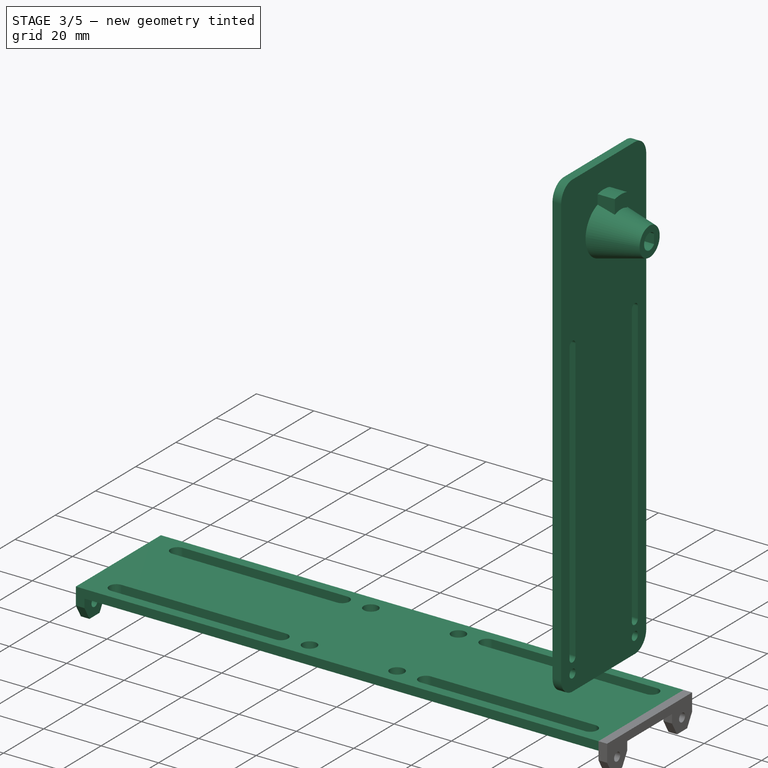
[diagram: stage 3 of 5 — iso view after this stage's code; geometry added in this stage tinted green]
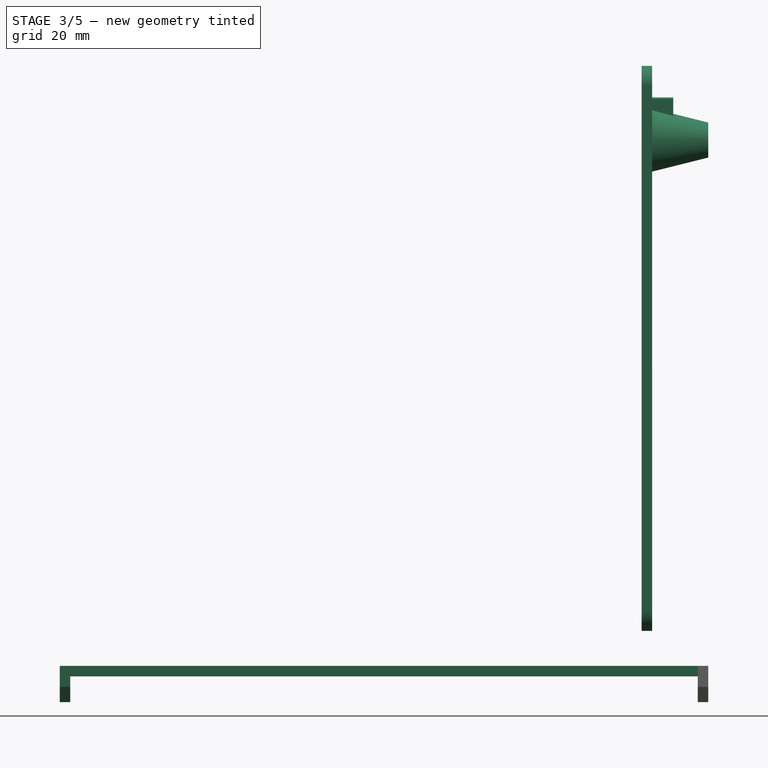
[diagram: stage 3 of 5 — front view after this stage's code; geometry added in this stage tinted green]
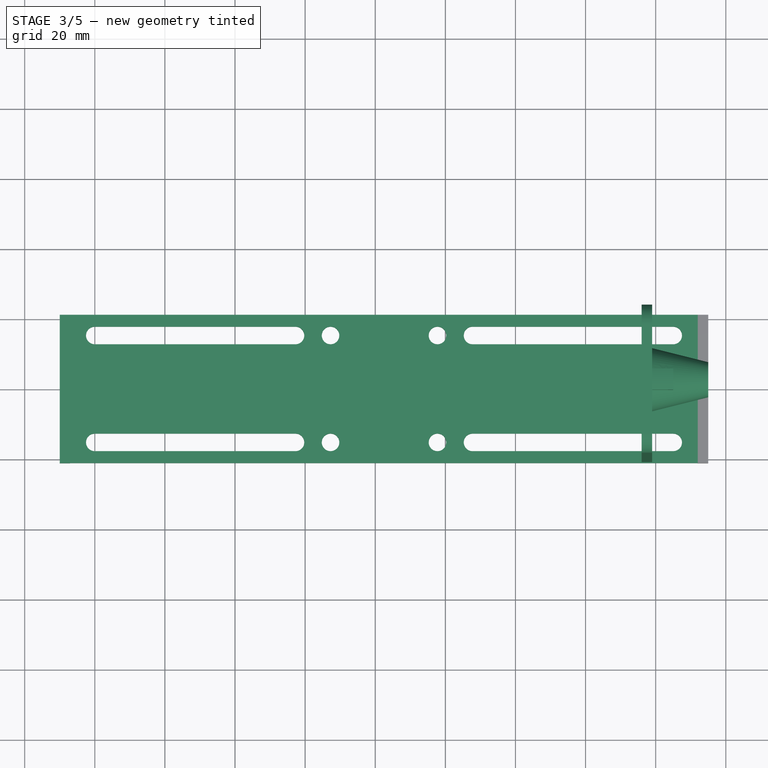
[diagram: stage 3 of 5 — top view after this stage's code; geometry added in this stage tinted green]
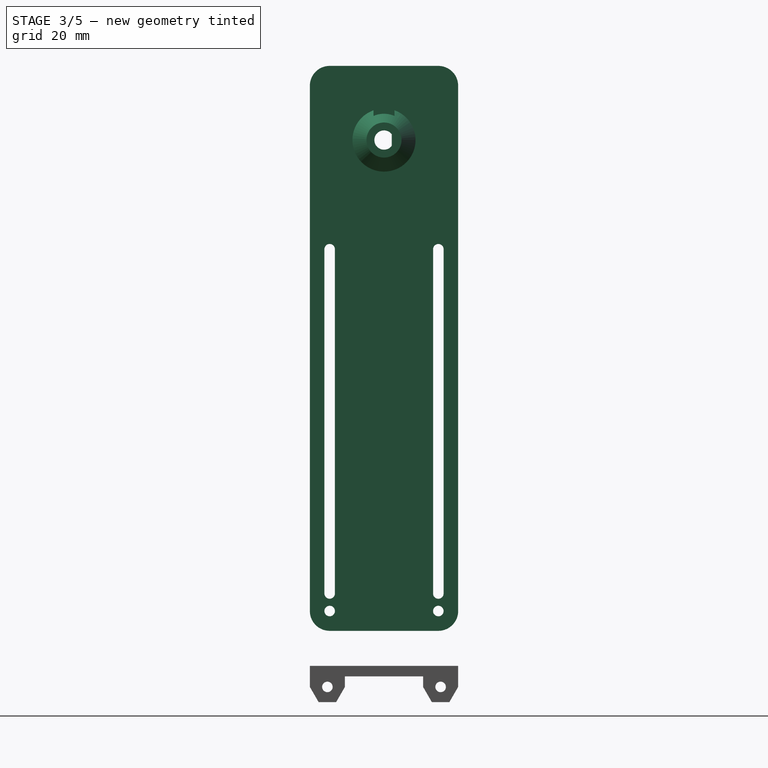
[diagram: stage 3 of 5 — right view after this stage's code; geometry added in this stage tinted green]
FEATURE [Sketcher::SketchObject] Sketch022
  ExternalGeometry = -> [Binder001]
  FullyConstrained = true
  MapMode = 5
  Placement = pos=(0,3.4e-14,-153) rot=(0,0,1;0rad)
  sketch-geometry (4):
    g0: LineSegment StartX=-45 StartY=21.15 StartZ=0 EndX=-230 EndY=21.15 EndZ=0
    g1: LineSegment StartX=-230 StartY=21.15 StartZ=0 EndX=-230 EndY=-21.15 EndZ=0
    g2: LineSegment StartX=-230 StartY=-21.15 StartZ=0 EndX=-45 EndY=-21.15 EndZ=0
    g3: LineSegment StartX=-45 StartY=-21.15 StartZ=0 EndX=-45 EndY=21.15 EndZ=0
  constraints (10):
    c: Coincident(g0,g1)
    c: Coincident(g1,g2)
    c: Coincident(g2,g3)
    c: Coincident(g3,g0)
    c: Horizontal(g0)
    c: Horizontal(g2)
    c: Vertical(g1)
    c: Coincident(g0,g-4)
    c: Coincident(g2,g-3)
    c: Distance(g2) = 185
FEATURE [PartDesign::Pad] Pad009
  BaseFeature = -> Pad008
  Direction = (0,0,1)
  Length = 3
  Length2 = 10
  Profile = -> Sketch022
  ReferenceAxis = -> Sketch022 [N_Axis]
  Type = 0
FEATURE [Sketcher::SketchObject] Sketch023
  ExternalGeometry = -> [Pad009]
  FullyConstrained = true
  MapMode = 5
  Placement = pos=(0,0,-153) rot=(1,0,0;3.14159rad)
  Support = -> [Pad009]
  sketch-geometry (37):
    g0: Circle CenterX=-152.75 CenterY=15.25 CenterZ=0 NormalX=0 NormalY=0 NormalZ=1 AngleXU=0 Radius=2.5
    g1: Circle CenterX=-122.25 CenterY=15.25 CenterZ=0 NormalX=0 NormalY=0 NormalZ=1 AngleXU=0 Radius=2.5
    g2: Circle CenterX=-152.75 CenterY=-15.25 CenterZ=0 NormalX=0 NormalY=0 NormalZ=1 AngleXU=0 Radius=2.5
    g3: Circle CenterX=-122.25 CenterY=-15.25 CenterZ=0 NormalX=0 NormalY=0 NormalZ=1 AngleXU=0 Radius=2.5
    g4: LineSegment StartX=-152.75 StartY=15.25 StartZ=0 EndX=-122.25 EndY=15.25 EndZ=0
    g5: LineSegment StartX=-122.25 StartY=15.25 StartZ=0 EndX=-122.25 EndY=-15.25 EndZ=0
    g6: LineSegment StartX=-122.25 StartY=-15.25 StartZ=0 EndX=-152.75 EndY=-15.25 EndZ=0
    g7: LineSegment StartX=-152.75 StartY=-15.25 StartZ=0 EndX=-152.75 EndY=15.25 EndZ=0
    g8: LineSegment StartX=-152.75 StartY=15.25 StartZ=0 EndX=-230 EndY=15.25 EndZ=0
    g9: LineSegment StartX=-122.25 StartY=15.25 StartZ=0 EndX=-45 EndY=15.25 EndZ=0
    g10: LineSegment StartX=-152.75 StartY=15.25 StartZ=0 EndX=-152.75 EndY=21.15 EndZ=0
    g11: LineSegment StartX=-152.75 StartY=-15.25 StartZ=0 EndX=-152.75 EndY=-21.15 EndZ=0
    g12: ArcOfCircle CenterX=-112.25 CenterY=15.25 CenterZ=0 NormalX=0 NormalY=0 NormalZ=1 AngleXU=0 Radius=2.5 StartAngle=1.5708 EndAngle=4.71239
    g13: ArcOfCircle CenterX=-55 CenterY=15.25 CenterZ=0 NormalX=0 NormalY=0 NormalZ=1 AngleXU=0 Radius=2.5 StartAngle=4.71239 EndAngle=7.85398
    g14: LineSegment StartX=-112.25 StartY=12.75 StartZ=0 EndX=-55 EndY=12.75 EndZ=0
    g15: LineSegment StartX=-55 StartY=17.75 StartZ=0 EndX=-112.25 EndY=17.75 EndZ=0
    g16: ArcOfCircle CenterX=-162.75 CenterY=15.25 CenterZ=0 NormalX=0 NormalY=0 NormalZ=1 AngleXU=0 Radius=2.5 StartAngle=4.71239 EndAngle=7.85398
    g17: ArcOfCircle CenterX=-220 CenterY=15.25 CenterZ=0 NormalX=0 NormalY=0 NormalZ=1 AngleXU=0 Radius=2.5 StartAngle=1.5708 EndAngle=4.71239
    g18: LineSegment StartX=-162.75 StartY=17.75 StartZ=0 EndX=-220 EndY=17.75 EndZ=0
    g19: LineSegment StartX=-220 StartY=12.75 StartZ=0 EndX=-162.75 EndY=12.75 EndZ=0
    g20: ArcOfCircle CenterX=-162.75 CenterY=-15.25 CenterZ=0 NormalX=0 NormalY=0 NormalZ=1 AngleXU=0 Radius=2.5 StartAngle=4.71239 EndAngle=7.85398
    g21: ArcOfCircle CenterX=-220 CenterY=-15.25 CenterZ=0 NormalX=0 NormalY=0 NormalZ=1 AngleXU=0 Radius=2.5 StartAngle=1.5708 EndAngle=4.71239
    g22: LineSegment StartX=-162.75 StartY=-12.75 StartZ=0 EndX=-220 EndY=-12.75 EndZ=0
    g23: LineSegment StartX=-220 StartY=-17.75 StartZ=0 EndX=-162.75 EndY=-17.75 EndZ=0
    g24: ArcOfCircle CenterX=-112.25 CenterY=-15.25 CenterZ=0 NormalX=0 NormalY=0 NormalZ=1 AngleXU=0 Radius=2.5 StartAngle=1.5708 EndAngle=4.71239
    g25: ArcOfCircle CenterX=-55 CenterY=-15.25 CenterZ=0 NormalX=0 NormalY=0 NormalZ=1 AngleXU=0 Radius=2.5 StartAngle=4.71239 EndAngle=7.85398
    g26: LineSegment StartX=-112.25 StartY=-17.75 StartZ=0 EndX=-55 EndY=-17.75 EndZ=0
    g27: LineSegment StartX=-55 StartY=-12.75 StartZ=0 EndX=-112.25 EndY=-12.75 EndZ=0
    g28: LineSegment StartX=-230 StartY=-15.25 StartZ=0 EndX=-45 EndY=-15.25 EndZ=0
    g29: LineSegment StartX=-220 StartY=15.25 StartZ=0 EndX=-220 EndY=-15.25 EndZ=0
    g30: LineSegment StartX=-112.25 StartY=15.25 StartZ=0 EndX=-112.25 EndY=-15.25 EndZ=0
    g31: LineSegment StartX=-162.75 StartY=15.25 StartZ=0 EndX=-162.75 EndY=-15.25 EndZ=0
    g32: LineSegment StartX=-55 StartY=15.25 StartZ=0 EndX=-55 EndY=-15.25 EndZ=0
    g33: LineSegment StartX=-230 StartY=0 StartZ=0 EndX=-220 EndY=0 EndZ=0
    g34: LineSegment StartX=-162.75 StartY=0 StartZ=0 EndX=-152.75 EndY=0 EndZ=0
    g35: LineSegment StartX=-122.25 StartY=0 StartZ=0 EndX=-112.25 EndY=0 EndZ=0
    g36: LineSegment StartX=-55 StartY=0 StartZ=0 EndX=-45 EndY=0 EndZ=0
  constraints (100):
    c: Coincident(g4,g5)
    c: Coincident(g5,g6)
    c: Coincident(g6,g7)
    c: Coincident(g7,g4)
    c: Horizontal(g4)
    c: Horizontal(g6)
    c: Vertical(g5)
    c: Vertical(g7)
    c: Coincident(g4,g0)
    c: Coincident(g5,g3)
    c: Coincident(g4,g1)
    c: Coincident(g2,g6)
    c: Equal(g6,g7)
    c: Distance(g6) = 30.5
    c: Equal(g1,g3)
    c: Equal(g3,g2)
    c: Equal(g2,g0)
    c: Diameter(g1) = 5
    c: Coincident(g8,g0)
    c: Horizontal(g8)
    c: Coincident(g9,g1)
    c: Horizontal(g9)
    c: Equal(g9,g8)
    c: Coincident(g10,g0)
    c: Vertical(g10)
    c: Coincident(g11,g2)
    c: Equal(g11,g10)
    c: Vertical(g11)
    c: Tangent(g12,g14) = -1.5708
    c: Tangent(g14,g13) = -1.5708
    c: Tangent(g13,g15) = -1.5708
    c: Tangent(g15,g12) = -1.5708
    c: Equal(g12,g13)
    c: PointOnObject(g12,g9)
    c: PointOnObject(g13,g9)
    c: Tangent(g16,g18) = -1.5708
    c: Tangent(g18,g17) = -1.5708
    c: Tangent(g17,g19) = -1.5708
    c: Tangent(g19,g16) = -1.5708
    c: Equal(g16,g17)
    c: PointOnObject(g16,g8)
    c: PointOnObject(g17,g8)
    c: Tangent(g20,g22) = -1.5708
    c: Tangent(g22,g21) = -1.5708
    c: Tangent(g21,g23) = -1.5708
    c: Tangent(g23,g20) = -1.5708
    c: Equal(g20,g21)
    c: Horizontal(g22)
    c: Tangent(g24,g26) = -1.5708
    c: Tangent(g26,g25) = -1.5708
    c: Tangent(g25,g27) = -1.5708
    c: Tangent(g27,g24) = -1.5708
    c: Equal(g24,g25)
    c: Horizontal(g26)
    c: Equal(g24,g12)
    c: Equal(g12,g16)
    c: Equal(g16,g20)
    c: Equal(g20,g1)
    c: Horizontal(g28)
    c: PointOnObject(g24,g28)
    c: PointOnObject(g20,g28)
    c: Coincident(g29,g17)
    c: Coincident(g29,g21)
    c: Coincident(g30,g12)
    c: Coincident(g30,g24)
    c: Vertical(g30)
    c: Vertical(g29)
    c: Coincident(g31,g16)
    c: Coincident(g31,g20)
    c: Coincident(g32,g13)
    c: Coincident(g32,g25)
    c: Vertical(g32)
    c: Vertical(g31)
    c: PointOnObject(g33,g29)
    c: Horizontal(g33)
    c: PointOnObject(g34,g31)
    c: PointOnObject(g34,g7)
    c: Horizontal(g34)
    c: PointOnObject(g35,g5)
    c: PointOnObject(g35,g30)
    c: Horizontal(g35)
    c: PointOnObject(g36,g32)
    c: Horizontal(g36)
    c: Equal(g36,g35)
    c: Equal(g35,g34)
    c: Equal(g34,g33)
    c: Distance(g34) = 10
    c: PointOnObject(g35,g-1)
    c: PointOnObject(g34,g-1)
    c: PointOnObject(g2,g28)
    c: PointOnObject(g33,g-1)
    c: PointOnObject(g36,g-1)
    c: PointOnObject(g36,g-4)
    c: PointOnObject(g9,g-4)
    c: PointOnObject(g8,g-3)
    c: PointOnObject(g33,g-3)
    c: PointOnObject(g11,g-6)
    c: PointOnObject(g10,g-5)
    c: PointOnObject(g28,g-4)
    c: PointOnObject(g28,g-3)
FEATURE [PartDesign::Pocket] Pocket
  BaseFeature = -> Pad009
  Direction = (0,0,1)
  Length = 5
  Length2 = 5
  Profile = -> Sketch023
  ReferenceAxis = -> Sketch023 [N_Axis]
  Type = 0
FEATURE [PartDesign::SubShapeBinder] Binder010
  BindCopyOnChange = 0
  BindMode = 0
  ClaimChildren = false
  Context = -> Body004 [Binder010.]
  Fuse = false
  MakeFace = true
  OffsetFill = false
  OffsetIntersection = false
  OffsetJoinType = 0
  OffsetOpenResult = false
  PartialLoad = false
  Relative = true
  Support = -> [Body[Pad007.Face82]]
  _Version = 2
FEATURE [Sketcher::SketchObject] Sketch028
  AttachmentOffset = pos=(0,0,1) rot=(0,0,1;0rad)
  ExternalGeometry = -> [Binder009,Binder008,Binder010]
  FullyConstrained = true
  MapMode = 5
  Placement = pos=(-61,0,0) rot=(0.57735,-0.57735,-0.57735;2.0944rad)
  Support = -> [Binder008]
  sketch-geometry (30):
    g0: LineSegment StartX=-21.15 StartY=15.5 StartZ=0 EndX=-21.15 EndY=-134.35 EndZ=0
    g1: LineSegment StartX=-15.5 StartY=21.15 StartZ=0 EndX=15.5 EndY=21.15 EndZ=0
    g2: LineSegment StartX=21.15 StartY=15.5 StartZ=0 EndX=21.15 EndY=-134.35 EndZ=0
    g3: ArcOfCircle CenterX=-15.5 CenterY=15.5 CenterZ=0 NormalX=0 NormalY=0 NormalZ=1 AngleXU=0 Radius=5.65 StartAngle=1.5708 EndAngle=3.14159
    g4: ArcOfCircle CenterX=15.5 CenterY=15.5 CenterZ=0 NormalX=0 NormalY=0 NormalZ=1 AngleXU=0 Radius=5.65 StartAngle=0 EndAngle=1.5708
    g5: ArcOfCircle CenterX=-15.5 CenterY=-134.35 CenterZ=0 NormalX=0 NormalY=0 NormalZ=1 AngleXU=0 Radius=5.65 StartAngle=3.14159 EndAngle=4.71239
    g6: ArcOfCircle CenterX=15.5 CenterY=-134.35 CenterZ=0 NormalX=0 NormalY=0 NormalZ=1 AngleXU=0 Radius=5.65 StartAngle=4.71239 EndAngle=6.28319
    g7: LineSegment StartX=-15.5 StartY=-140 StartZ=0 EndX=15.5 EndY=-140 EndZ=0
    g8: LineSegment StartX=-21.15 StartY=-134.35 StartZ=0 EndX=21.15 EndY=-134.35 EndZ=0
    g9: LineSegment StartX=15.5 StartY=15.5 StartZ=0 EndX=21.15 EndY=15.5 EndZ=0
    g10: LineSegment StartX=15.5 StartY=-134.35 StartZ=0 EndX=15.5 EndY=-140 EndZ=0
    g11: Circle CenterX=15.5 CenterY=-134.35 CenterZ=0 NormalX=0 NormalY=0 NormalZ=1 AngleXU=0 Radius=1.5
    g12: Circle CenterX=-15.5 CenterY=-134.35 CenterZ=0 NormalX=0 NormalY=0 NormalZ=1 AngleXU=0 Radius=1.5
    g13: ArcOfCircle CenterX=15.5 CenterY=-31.15 CenterZ=0 NormalX=0 NormalY=0 NormalZ=1 AngleXU=0 Radius=1.5 StartAngle=6e-16 EndAngle=3.14159
    g14: ArcOfCircle CenterX=15.5 CenterY=-129.35 CenterZ=0 NormalX=0 NormalY=0 NormalZ=1 AngleXU=0 Radius=1.5 StartAngle=3.14159 EndAngle=6.28319
    g15: LineSegment StartX=14 StartY=-31.15 StartZ=0 EndX=14 EndY=-129.35 EndZ=0
    g16: LineSegment StartX=17 StartY=-129.35 StartZ=0 EndX=17 EndY=-31.15 EndZ=0
    g17: LineSegment StartX=15.5 StartY=-129.35 StartZ=0 EndX=21.15 EndY=-129.35 EndZ=0
    g18: LineSegment StartX=15.5 StartY=-134.35 StartZ=0 EndX=15.5 EndY=-129.35 EndZ=0
    g19: ArcOfCircle CenterX=-15.5 CenterY=-31.15 CenterZ=0 NormalX=0 NormalY=0 NormalZ=1 AngleXU=0 Radius=1.5 StartAngle=1.9e-15 EndAngle=3.14159
    g20: ArcOfCircle CenterX=-15.5 CenterY=-129.35 CenterZ=0 NormalX=0 NormalY=0 NormalZ=1 AngleXU=0 Radius=1.5 StartAngle=3.14159 EndAngle=6.28319
    g21: LineSegment StartX=-17 StartY=-31.15 StartZ=0 EndX=-17 EndY=-129.35 EndZ=0
    g22: LineSegment StartX=-14 StartY=-129.35 StartZ=0 EndX=-14 EndY=-31.15 EndZ=0
    g23: LineSegment StartX=-15.5 StartY=-129.35 StartZ=0 EndX=-21.15 EndY=-129.35 EndZ=0
    g24: LineSegment StartX=-15.5 StartY=-129.35 StartZ=0 EndX=-15.5 EndY=-134.35 EndZ=0
    g25: LineSegment StartX=-15.5 StartY=-31.15 StartZ=0 EndX=15.5 EndY=-31.15 EndZ=0
    g26: ArcOfCircle CenterX=0 CenterY=-1.42e-14 CenterZ=0 NormalX=0 NormalY=0 NormalZ=1 AngleXU=0 Radius=2.75 StartAngle=3.78509 EndAngle=8.78128
    g27: LineSegment StartX=-2.2 StartY=1.65 StartZ=0 EndX=-2.2 EndY=-1.65 EndZ=0
    g28: LineSegment StartX=-2.2 StartY=1.65 StartZ=0 EndX=0 EndY=-1.42e-14 EndZ=0
    g29: LineSegment StartX=0 StartY=-1.42e-14 StartZ=0 EndX=-2.2 EndY=-1.65 EndZ=0
  constraints (68):
    c: Coincident(g0,g-3)
    c: Coincident(g1,g-3)
    c: Coincident(g1,g-4)
    c: Coincident(g2,g-4)
    c: Tangent(g3,g1) = 1.5708
    c: Tangent(g3,g0) = -1.5708
    c: Tangent(g4,g2) = 1.5708
    c: Tangent(g4,g1) = 1.5708
    c: Tangent(g6,g2) = 1.5708
    c: Tangent(g5,g0) = -1.5708
    c: Horizontal(g7)
    c: Coincident(g8,g0)
    c: Coincident(g8,g2)
    c: Horizontal(g8)
    c: Tangent(g7,g5) = -1.5708
    c: Tangent(g7,g6) = -1.5708
    c: Coincident(g9,g4)
    c: Coincident(g9,g2)
    c: Coincident(g10,g6)
    c: Coincident(g10,g6)
    c: Equal(g10,g9)
    c: Coincident(g11,g6)
    c: Diameter(g11) = 3
    c: Coincident(g12,g5)
    c: Equal(g11,g12)
    c: Tangent(g13,g15) = -1.5708
    c: Tangent(g15,g14) = -1.5708
    c: Tangent(g14,g16) = -1.5708
    c: Tangent(g16,g13) = -1.5708
    c: Equal(g13,g14)
    c: Vertical(g15)
    c: Diameter(g14) = 3
    c: Coincident(g17,g14)
    c: PointOnObject(g17,g2)
    c: Horizontal(g17)
    c: Equal(g17,g10)
    c: Coincident(g18,g6)
    c: Coincident(g18,g14)
    c: Distance(g18) = 5
    c: Tangent(g19,g21) = -1.5708
    c: Tangent(g21,g20) = -1.5708
    c: Tangent(g20,g22) = -1.5708
    c: Tangent(g22,g19) = -1.5708
    c: Equal(g19,g20)
    c: Equal(g20,g14)
    c: Coincident(g23,g20)
    c: PointOnObject(g23,g0)
    c: Horizontal(g23)
    c: Coincident(g24,g20)
    c: Coincident(g24,g5)
    c: Vertical(g24)
    c: Equal(g18,g24)
    c: Vertical(g22)
    c: Coincident(g25,g19)
    c: Coincident(g25,g13)
    c: Horizontal(g25)
    c: Distance(g-1,g7) = 140
    c: Distance(g-8,g25) = 10
    c: Coincident(g26,g-9)
    c: Coincident(g27,g26)
    c: Coincident(g27,g26)
    c: Vertical(g27)
    c: Coincident(g28,g26)
    c: Coincident(g28,g26)
    c: Coincident(g29,g26)
    c: Coincident(g29,g26)
    c: PointOnObject(g-9,g29)
    c: Diameter(g26) = 5.5
FEATURE [PartDesign::Pad] Pad012
  Direction = (-1,0,0)
  Length = 3
  Length2 = 10
  Profile = -> Sketch028
  ReferenceAxis = -> Sketch028 [N_Axis]
  Type = 0
FEATURE [Sketcher::SketchObject] Sketch029
  FullyConstrained = true
  MapMode = 5
  Placement = pos=(-61,0,0) rot=(0.57735,0.57735,0.57735;2.0944rad)
  Support = -> [Pad012]
  sketch-geometry (1):
    g0: Circle CenterX=0 CenterY=0 CenterZ=0 NormalX=0 NormalY=0 NormalZ=1 AngleXU=0 Radius=9
  constraints (2):
    c: Diameter(g0) = 18
    c: Coincident(g0,g-1)
FEATURE [PartDesign::SubShapeBinder] Binder011
  BindCopyOnChange = 0
  BindMode = 0
  ClaimChildren = false
  Context = -> Body004 [Binder011.]
  Fuse = false
  MakeFace = true
  OffsetFill = false
  OffsetIntersection = false
  OffsetJoinType = 0
  OffsetOpenResult = false
  PartialLoad = false
  Relative = true
  Support = -> [Body001[Fillet.Edge53,Fillet.Edge60,Fillet.Edge59,Fillet.Edge58,Fillet.Edge57,Fillet.Edge56,Fillet.Edge55,Fillet.Edge54]]
  _Version = 2
FEATURE [Sketcher::SketchObject] Sketch030
  AttachmentOffset = pos=(0,0,16) rot=(0,0,1;0rad)
  ExternalGeometry = -> [Pad012]
  FullyConstrained = true
  MapMode = 5
  Placement = pos=(-45,0,0) rot=(0.57735,0.57735,0.57735;2.0944rad)
  Support = -> [Pad012]
  sketch-geometry (1):
    g0: Circle CenterX=0 CenterY=-1.42e-14 CenterZ=0 NormalX=0 NormalY=0 NormalZ=1 AngleXU=0 Radius=5
  constraints (2):
    c: Diameter(g0) = 10
    c: Coincident(g0,g-3)
FEATURE [PartDesign::AdditiveLoft] AdditiveLoft002
  BaseFeature = -> Pad012
  Closed = false
  Profile = -> Sketch029
  Ruled = false
  Sections = -> [Sketch030]
FEATURE [PartDesign::SubShapeBinder] Binder012
  BindCopyOnChange = 0
  BindMode = 0
  ClaimChildren = false
  Context = -> Body004 [Binder012.]
  Fuse = false
  MakeFace = true
  OffsetFill = false
  OffsetIntersection = false
  OffsetJoinType = 0
  OffsetOpenResult = false
  PartialLoad = false
  Relative = true
  Support = -> [Sketch030[Edge1]]
  _Version = 2
FEATURE [Sketcher::SketchObject] Sketch032
  ExternalGeometry = -> [Pad012]
  FullyConstrained = true
  MapMode = 5
  Placement = pos=(-45,0,0) rot=(0.57735,0.57735,0.57735;2.0944rad)
  Support = -> [Binder012]
  sketch-geometry (2):
    g0: ArcOfCircle CenterX=0 CenterY=-1.42e-14 CenterZ=0 NormalX=0 NormalY=0 NormalZ=1 AngleXU=0 Radius=2.75 StartAngle=0.643501 EndAngle=5.63968
    g1: LineSegment StartX=2.2 StartY=1.65 StartZ=0 EndX=2.2 EndY=-1.65 EndZ=0
  constraints (5):
    c: Coincident(g0,g-3)
    c: Coincident(g0,g-3)
    c: Coincident(g1,g0)
    c: Coincident(g1,g0)
    c: Vertical(g1)
FEATURE [Sketcher::SketchObject] Sketch033
  ExternalGeometry = -> [Sketch032]
  FullyConstrained = true
  MapMode = 5
  Placement = pos=(-61,0,0) rot=(0.57735,0.57735,0.57735;2.0944rad)
  Support = -> [Pad012]
  sketch-geometry (2):
    g0: ArcOfCircle CenterX=0 CenterY=-1.42e-14 CenterZ=0 NormalX=0 NormalY=0 NormalZ=1 AngleXU=0 Radius=2.75 StartAngle=0.643501 EndAngle=5.63968
    g1: LineSegment StartX=2.2 StartY=1.65 StartZ=0 EndX=2.2 EndY=-1.65 EndZ=0
  constraints (5):
    c: Coincident(g0,g-3)
    c: Coincident(g0,g-3)
    c: Coincident(g1,g0)
    c: Coincident(g1,g0)
    c: Vertical(g1)
FEATURE [PartDesign::SubtractiveLoft] SubtractiveLoft
  BaseFeature = -> AdditiveLoft002
  Closed = false
  Profile = -> Sketch033
  Ruled = false
  Sections = -> [Sketch032]
FEATURE [PartDesign::Body] Body001  label="Static-Handle-1-Motor"
  Group = -> [Binder,Sketch,Pad,Sketch019,Sketch020,AdditiveLoft,PolarPattern,Fillet,Sketch040,Pocket001]
  Origin = -> Origin001
  Tip = -> Pocket001
FEATURE [PartDesign::SubShapeBinder] Binder018
  BindCopyOnChange = 0
  BindMode = 0
  ClaimChildren = false
  Context = -> Body004 [Binder018.]
  Fuse = false
  MakeFace = true
  OffsetFill = false
  OffsetIntersection = false
  OffsetJoinType = 0
  OffsetOpenResult = false
  PartialLoad = false
  Relative = true
  Support = -> [Body001[Pocket001.Face17]]
  _Version = 2
FEATURE [Sketcher::SketchObject] Sketch041
  ExternalGeometry = -> [Binder018,SubtractiveLoft]
  FullyConstrained = true
  MapMode = 5
  Placement = pos=(-61,0,0) rot=(0.57735,0.57735,0.57735;2.0944rad)
  Support = -> [SubtractiveLoft]
  sketch-geometry (5):
    g0: ArcOfCircle CenterX=-9e-16 CenterY=-1.42e-14 CenterZ=0 NormalX=0 NormalY=0 NormalZ=1 AngleXU=0 Radius=12.1597 StartAngle=1.32151 EndAngle=1.82009
    g1: LineSegment StartX=-3 StartY=2.75 StartZ=0 EndX=3 EndY=2.75 EndZ=0
    g2: LineSegment StartX=-3 StartY=11.7838 StartZ=0 EndX=-3 EndY=2.75 EndZ=0
    g3: LineSegment StartX=3 StartY=11.7838 StartZ=0 EndX=3 EndY=2.75 EndZ=0
    g4: LineSegment StartX=0 StartY=12.1597 StartZ=0 EndX=0 EndY=14.6597 EndZ=0
  constraints (16):
    c: Horizontal(g1)
    c: Tangent(g1,g-6)
    c: Coincident(g2,g0)
    c: Coincident(g2,g1)
    c: Coincident(g3,g0)
    c: Coincident(g3,g1)
    c: Vertical(g3)
    c: Vertical(g2)
    c: Distance(g0,g0) = 6
    c: Symmetric(g0,g0,g-2)
    c: PointOnObject(g4,g0)
    c: Vertical(g4)
    c: Distance(g4) = 2.5
    c: PointOnObject(g4,g-7)
    c: Coincident(g0,g-6)
    c: PointOnObject(g4,g-2)
FEATURE [PartDesign::Pad] Pad018
  BaseFeature = -> SubtractiveLoft
  Direction = (1,0,0)
  Length = 6
  Length2 = 10
  Profile = -> Sketch041
  ReferenceAxis = -> Sketch041 [N_Axis]
  Type = 0
FEATURE [Sketcher::SketchObject] Sketch042
  ExternalGeometry = -> [Pad018]
  FullyConstrained = true
  MapMode = 5
  Placement = pos=(-55,0,0) rot=(0.57735,0.57735,0.57735;2.0944rad)
  Support = -> [Pad018]
  sketch-geometry (4):
    g0: LineSegment StartX=-2.05 StartY=10.9856 StartZ=0 EndX=2.05 EndY=10.9856 EndZ=0
    g1: LineSegment StartX=2.05 StartY=10.9856 StartZ=0 EndX=2.05 EndY=11.9856 EndZ=0
    g2: LineSegment StartX=-2.05 StartY=10.9856 StartZ=0 EndX=-2.05 EndY=11.9856 EndZ=0
    g3: ArcOfCircle CenterX=-9e-16 CenterY=-1.42e-14 CenterZ=0 NormalX=0 NormalY=0 NormalZ=1 AngleXU=0 Radius=12.1597 StartAngle=1.4014 EndAngle=1.7402
  constraints (11):
    c: Coincident(g1,g0)
    c: PointOnObject(g1,g-3)
    c: Vertical(g1)
    c: Coincident(g2,g0)
    c: Vertical(g2)
    c: Symmetric(g0,g0,g-2)
    c: Distance(g1) = 1
    c: Coincident(g3,g-3)
    c: Coincident(g3,g2)
    c: Coincident(g3,g1)
    c: Distance(g0) = 4.1
FEATURE [Sketcher::SketchObject] Sketch044
  ExternalGeometry = -> [Pad009]
  FullyConstrained = true
  MapMode = 5
  Placement = pos=(0,0,-153) rot=(1,0,0;3.14159rad)
  Support = -> [Pad009]
  sketch-geometry (2):
    g0: LineSegment StartX=-137.5 StartY=21.15 StartZ=0 EndX=-137.5 EndY=0 EndZ=0
    g1: LineSegment StartX=-137.5 StartY=0 StartZ=0 EndX=-137.5 EndY=-21.15 EndZ=0
  constraints (6):
    c: Vertical(g0)
    c: Coincident(g1,g0)
    c: PointOnObject(g0,g-1)
    c: Vertical(g1)
    c: Symmetric(g-6,g-5,g0)
    c: PointOnObject(g1,g-4)
FEATURE [Sketcher::SketchObject] Sketch045
  ExternalGeometry = -> [Pad009,Sketch044]
  FullyConstrained = true
  MapMode = 5
  Placement = pos=(0,21.15,0) rot=(0,0.707107,0.707107;3.14159rad)
  Support = -> [Pad009]
  sketch-geometry (2):
    g0: LineSegment StartX=137.5 StartY=-151.5 StartZ=0 EndX=137.5 EndY=-150 EndZ=0
    g1: LineSegment StartX=137.5 StartY=-151.5 StartZ=0 EndX=137.5 EndY=-153 EndZ=0
  constraints (5):
    c: Coincident(g1,g0)
    c: Vertical(g1)
    c: Symmetric(g0,g1,g0)
    c: Coincident(g1,g-4)
    c: PointOnObject(g0,g-5)
FEATURE [PartDesign::Plane] DatumPlane
  Length = 69.2525
  MapMode = 13
  Placement = pos=(-137.5,7.05,-151.5) rot=(0.57735,0.57735,0.57735;2.0944rad)
  ResizeMode = 0
  Support = -> [Sketch045,Sketch044]
  Width = 204.583
FEATURE [PartDesign::Mirrored] Mirrored
  BaseFeature = -> Pocket
  MirrorPlane = -> DatumPlane
  Originals = -> [Pad008]
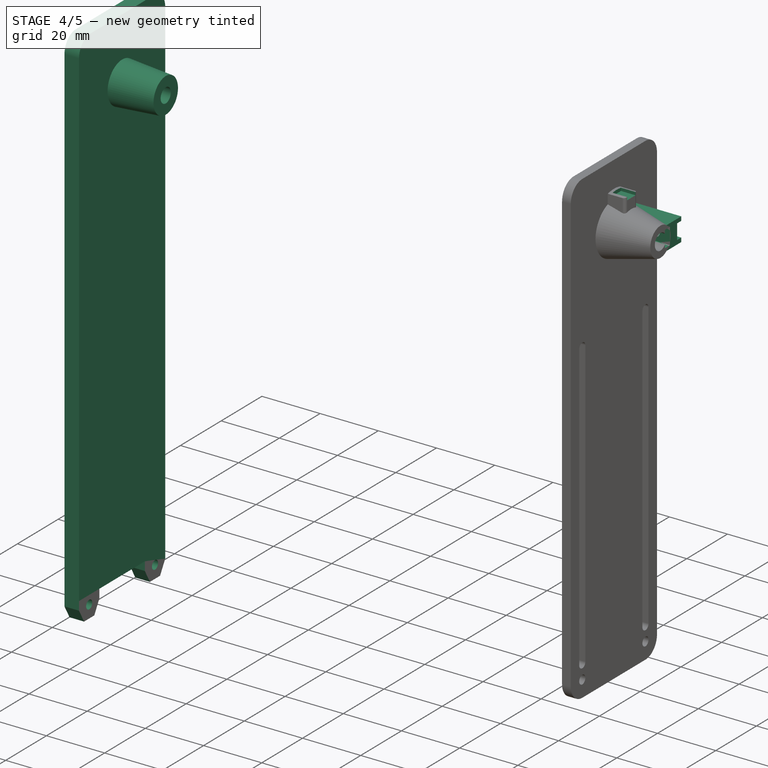
[diagram: stage 4 of 5 — iso view after this stage's code; geometry added in this stage tinted green]
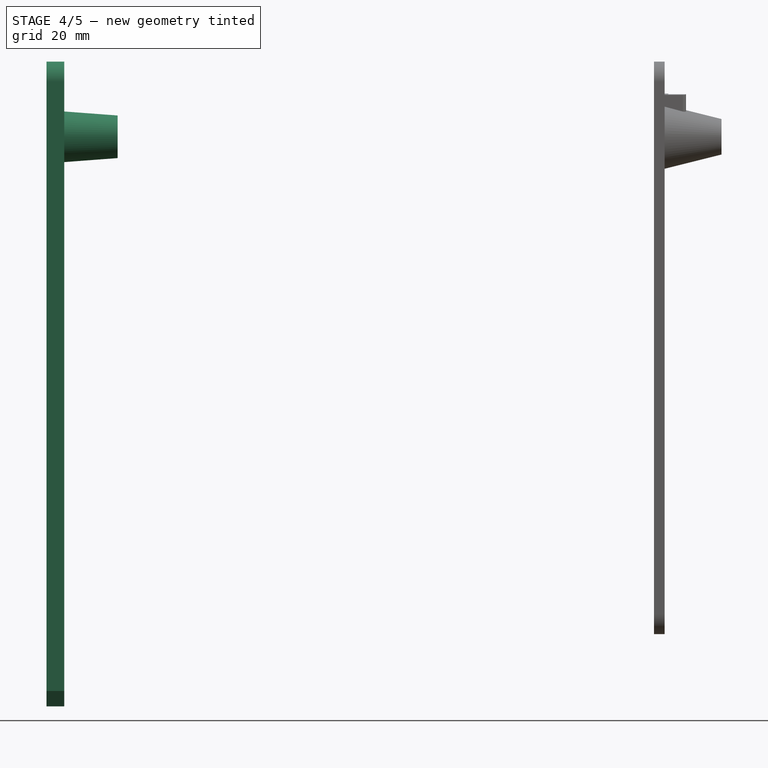
[diagram: stage 4 of 5 — front view after this stage's code; geometry added in this stage tinted green]
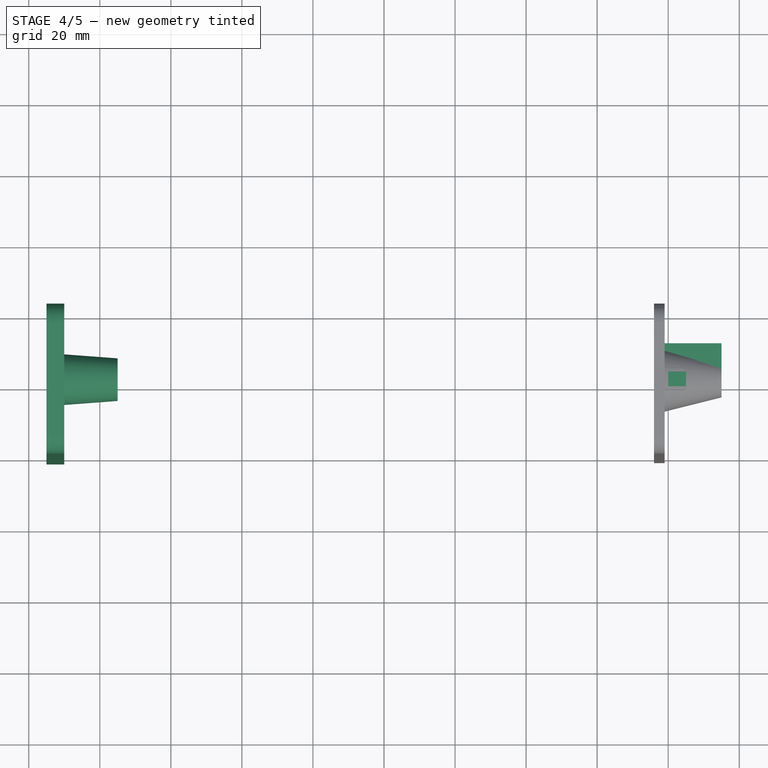
[diagram: stage 4 of 5 — top view after this stage's code; geometry added in this stage tinted green]
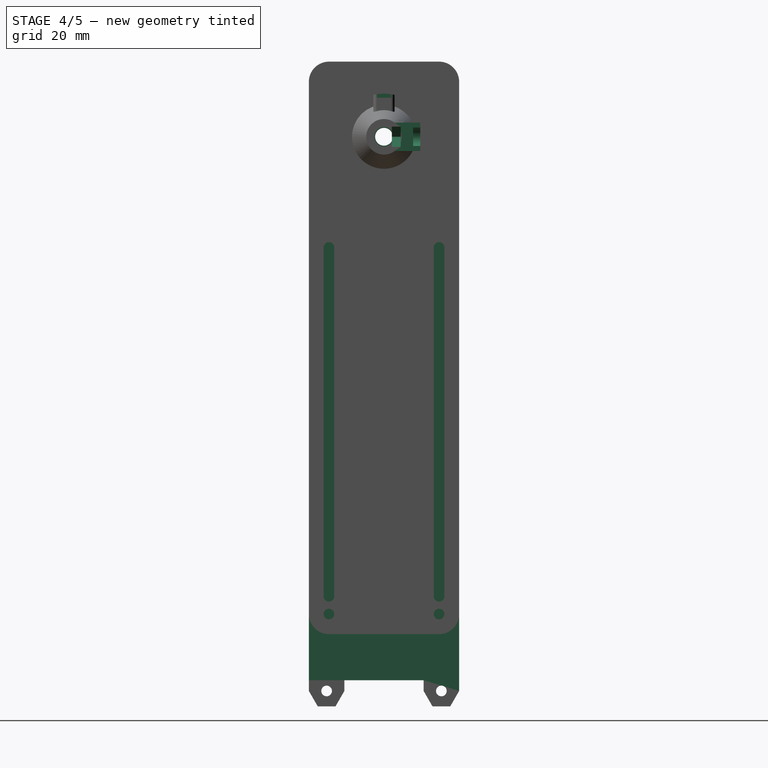
[diagram: stage 4 of 5 — right view after this stage's code; geometry added in this stage tinted green]
FEATURE [PartDesign::Body] Body005  label="Rot-Handle-2"
  Group = -> [Binder014,Binder019,Sketch049,Pad019,Sketch050,Pad020]
  Origin = -> Origin005
  Tip = -> Pad020
FEATURE [PartDesign::SubShapeBinder] Binder020
  BindCopyOnChange = 0
  BindMode = 0
  ClaimChildren = false
  Context = -> Body003 [Binder020.]
  Fuse = false
  MakeFace = true
  OffsetFill = false
  OffsetIntersection = false
  OffsetJoinType = 0
  OffsetOpenResult = false
  PartialLoad = false
  Relative = true
  Support = -> [Body002[Mirrored.Face65]]
  _Version = 2
FEATURE [Sketcher::SketchObject] Sketch025
  ExternalGeometry = -> [Binder003,Binder004,Binder002,Binder005,Binder006,Binder017]
  FullyConstrained = true
  MapMode = 5
  Placement = pos=(-230,-4.0479e-12,1.13278e-10) rot=(0.57735,-0.57735,-0.57735;2.0944rad)
  Support = -> [Binder020]
  sketch-geometry (18):
    g0: LineSegment StartX=-21.15 StartY=-156 StartZ=0 EndX=-18.65 EndY=-160.33 EndZ=0
    g1: LineSegment StartX=-18.65 StartY=-160.33 StartZ=0 EndX=-13.65 EndY=-160.33 EndZ=0
    g2: LineSegment StartX=-13.65 StartY=-160.33 StartZ=0 EndX=-11.15 EndY=-156 EndZ=0
    g3: LineSegment StartX=-11.15 StartY=-156 StartZ=0 EndX=-11.15 EndY=-153 EndZ=0
    g4: LineSegment StartX=-11.15 StartY=-153 StartZ=0 EndX=11.15 EndY=-153 EndZ=0
    g5: LineSegment StartX=11.15 StartY=-156 StartZ=0 EndX=13.65 EndY=-160.33 EndZ=0
    g6: LineSegment StartX=13.65 StartY=-160.33 StartZ=0 EndX=18.65 EndY=-160.33 EndZ=0
    g7: LineSegment StartX=18.65 StartY=-160.33 StartZ=0 EndX=21.15 EndY=-156 EndZ=0
    g8: LineSegment StartX=21.15 StartY=-156 StartZ=0 EndX=21.15 EndY=-153 EndZ=0
    g9: LineSegment StartX=11.15 StartY=-156 StartZ=0 EndX=11.15 EndY=-153 EndZ=0
    g10: Circle CenterX=16.15 CenterY=-156 CenterZ=0 NormalX=0 NormalY=0 NormalZ=1 AngleXU=0 Radius=1.5
    g11: Circle CenterX=-16.15 CenterY=-156 CenterZ=0 NormalX=0 NormalY=0 NormalZ=1 AngleXU=0 Radius=1.5
    g12: LineSegment StartX=-21.15 StartY=-156 StartZ=0 EndX=-21.15 EndY=15.5 EndZ=0
    g13: LineSegment StartX=21.15 StartY=15.5 StartZ=0 EndX=21.15 EndY=-153 EndZ=0
    g14: ArcOfCircle CenterX=-15.5 CenterY=15.5 CenterZ=0 NormalX=0 NormalY=0 NormalZ=1 AngleXU=0 Radius=5.65 StartAngle=1.5708 EndAngle=3.14159
    g15: ArcOfCircle CenterX=15.5 CenterY=15.5 CenterZ=0 NormalX=0 NormalY=0 NormalZ=1 AngleXU=0 Radius=5.65 StartAngle=-1.95e-14 EndAngle=1.5708
    g16: LineSegment StartX=-15.5 StartY=21.15 StartZ=0 EndX=15.5 EndY=21.15 EndZ=0
    g17: Circle CenterX=0 CenterY=0 CenterZ=0 NormalX=0 NormalY=0 NormalZ=1 AngleXU=0 Radius=2.5
  constraints (36):
    c: Coincident(g1,g0)
    c: Coincident(g2,g1)
    c: Coincident(g3,g2)
    c: Coincident(g4,g3)
    c: Coincident(g6,g5)
    c: Coincident(g7,g6)
    c: Coincident(g8,g7)
    c: Coincident(g9,g5)
    c: Coincident(g9,g4)
    c: Coincident(g13,g8)
    c: Tangent(g14,g12) = 1.5708
    c: Tangent(g15,g13) = 1.5708
    c: Coincident(g16,g14)
    c: Coincident(g16,g15)
    c: Coincident(g17,g-1)
    c: Diameter(g17) = 5
    c: Coincident(g15,g-15)
    c: Coincident(g14,g-19)
    c: Coincident(g14,g-20)
    c: Coincident(g-18,g15)
    c: Coincident(g8,g-6)
    c: Coincident(g-11,g7)
    c: Coincident(g6,g-11)
    c: Coincident(g4,g-24)
    c: Coincident(g5,g-23)
    c: Coincident(g5,g-22)
    c: Coincident(g10,g-12)
    c: Equal(g10,g-12)
    c: Equal(g11,g-7)
    c: Coincident(g11,g-7)
    c: Coincident(g3,g-25)
    c: Coincident(g2,g-26)
    c: Coincident(g1,g-27)
    c: Coincident(g0,g-28)
    c: Coincident(g0,g-29)
    c: Coincident(g12,g0)
FEATURE [PartDesign::Pad] Pad011
  Direction = (-1,-1.74e-14,4.924e-13)
  Length = 5
  Length2 = 10
  Profile = -> Sketch025
  ReferenceAxis = -> Sketch025 [N_Axis]
  Type = 0
FEATURE [Sketcher::SketchObject] Sketch026
  ExternalGeometry = -> [Pad011]
  FullyConstrained = true
  MapMode = 5
  Placement = pos=(-235,-3.9638e-12,1.15707e-10) rot=(0.57735,-0.57735,-0.57735;2.0944rad)
  Support = -> [Pad011]
  sketch-geometry (2):
    g0: Circle CenterX=0 CenterY=0 CenterZ=0 NormalX=0 NormalY=0 NormalZ=1 AngleXU=0 Radius=2.5
    g1: Circle CenterX=0 CenterY=0 CenterZ=0 NormalX=0 NormalY=0 NormalZ=1 AngleXU=0 Radius=7.5
  constraints (4):
    c: Coincident(g0,g-4)
    c: Tangent(g0,g-4)
    c: Coincident(g1,g0)
    c: Diameter(g1) = 15
FEATURE [Sketcher::SketchObject] Sketch027
  AttachmentOffset = pos=(0,0,-20) rot=(0,0,1;0rad)
  ExternalGeometry = -> [Pad011]
  FullyConstrained = true
  MapMode = 5
  Placement = pos=(-215,-3.6285e-12,1.05864e-10) rot=(0.57735,-0.57735,-0.57735;2.0944rad)
  Support = -> [Pad011]
  sketch-geometry (2):
    g0: Circle CenterX=0 CenterY=0 CenterZ=0 NormalX=0 NormalY=0 NormalZ=1 AngleXU=0 Radius=2.5
    g1: Circle CenterX=0 CenterY=0 CenterZ=0 NormalX=0 NormalY=0 NormalZ=1 AngleXU=0 Radius=6
  constraints (4):
    c: Coincident(g0,g-4)
    c: Tangent(g0,g-4)
    c: Coincident(g1,g0)
    c: Diameter(g1) = 12
FEATURE [PartDesign::AdditiveLoft] AdditiveLoft001
  BaseFeature = -> Pad011
  Closed = false
  Profile = -> Sketch026
  Ruled = false
  Sections = -> [Sketch027]
FEATURE [PartDesign::Body] Body003  label="Static-Handle-2"
  Group = -> [Binder002,Binder003,Binder004,Sketch025,Binder005,Binder006,Pad011,Sketch026,Sketch027,AdditiveLoft001,Binder017,Binder020]
  Origin = -> Origin003
  Tip = -> AdditiveLoft001
FEATURE [PartDesign::Pocket] Pocket002
  BaseFeature = -> Pad018
  Direction = (-1,0,0)
  Length = 5
  Length2 = 5
  Profile = -> Sketch042
  ReferenceAxis = -> Sketch042 [N_Axis]
  Type = 0
FEATURE [PartDesign::Fillet] Fillet001
  Base = -> Pocket002 [Edge75,Edge67]
  BaseFeature = -> Pocket002
  Radius = 1
  SupportTransform = false
  UseAllEdges = false
FEATURE [Sketcher::SketchObject] Sketch051
  ExternalGeometry = -> [Fillet001]
  FullyConstrained = true
  MapMode = 5
  Placement = pos=(-61,0,0) rot=(0.57735,0.57735,0.57735;2.0944rad)
  Support = -> [Fillet001]
  sketch-geometry (4):
    g0: LineSegment StartX=2.2 StartY=4 StartZ=0 EndX=10.2 EndY=4 EndZ=0
    g1: LineSegment StartX=10.2 StartY=4 StartZ=0 EndX=10.2 EndY=-4 EndZ=0
    g2: LineSegment StartX=10.2 StartY=-4 StartZ=0 EndX=2.2 EndY=-4 EndZ=0
    g3: LineSegment StartX=2.2 StartY=-4 StartZ=0 EndX=2.2 EndY=4 EndZ=0
  constraints (11):
    c: Coincident(g0,g1)
    c: Coincident(g1,g2)
    c: Coincident(g2,g3)
    c: Coincident(g3,g0)
    c: Horizontal(g0)
    c: Horizontal(g2)
    c: Vertical(g3)
    c: PointOnObject(g-3,g3)
    c: Distance(g1) = 8
    c: Symmetric(g0,g1,g-1)
    c: Distance(g2) = 8
FEATURE [Sketcher::SketchObject] Sketch052
  ExternalGeometry = -> [Sketch051]
  FullyConstrained = true
  MapMode = 5
  Placement = pos=(-45,0,0) rot=(0.57735,0.57735,0.57735;2.0944rad)
  Support = -> [Fillet001]
  sketch-geometry (4):
    g0: LineSegment StartX=2.2 StartY=4 StartZ=0 EndX=10.2 EndY=4 EndZ=0
    g1: LineSegment StartX=10.2 StartY=4 StartZ=0 EndX=10.2 EndY=-4 EndZ=0
    g2: LineSegment StartX=10.2 StartY=-4 StartZ=0 EndX=2.2 EndY=-4 EndZ=0
    g3: LineSegment StartX=2.2 StartY=-4 StartZ=0 EndX=2.2 EndY=4 EndZ=0
  constraints (10):
    c: Coincident(g0,g1)
    c: Coincident(g1,g2)
    c: Coincident(g2,g3)
    c: Coincident(g3,g0)
    c: Horizontal(g0)
    c: Horizontal(g2)
    c: Vertical(g1)
    c: Vertical(g3)
    c: Coincident(g0,g-3)
    c: Coincident(g1,g-4)
FEATURE [PartDesign::AdditiveLoft] AdditiveLoft003
  BaseFeature = -> Fillet001
  Closed = false
  Profile = -> Sketch052
  Ruled = false
  Sections = -> [Sketch051]
FEATURE [Sketcher::SketchObject] Sketch053
  ExternalGeometry = -> [AdditiveLoft003]
  FullyConstrained = true
  MapMode = 5
  Placement = pos=(-5.3e-15,2.2,0) rot=(1,0,0;1.5708rad)
  Support = -> [AdditiveLoft003]
  sketch-geometry (1):
    g0: Circle CenterX=-50 CenterY=0 CenterZ=0 NormalX=0 NormalY=0 NormalZ=1 AngleXU=0 Radius=1.5
  constraints (3):
    c: PointOnObject(g0,g-1)
    c: Diameter(g0) = 3
    c: Distance(g0,g-3) = 5
FEATURE [PartDesign::Pocket] Pocket003
  BaseFeature = -> AdditiveLoft003
  Direction = (-2.4e-15,1,-2e-16)
  Length = 15
  Length2 = 5
  Profile = -> Sketch053
  ReferenceAxis = -> Sketch053 [N_Axis]
  Type = 0
FEATURE [Sketcher::SketchObject] Sketch054
  ExternalGeometry = -> [Pocket003]
  FullyConstrained = true
  MapMode = 5
  Placement = pos=(-5.3e-15,2.2,0) rot=(1,0,0;1.5708rad)
  Support = -> [Pocket003]
  sketch-geometry (9):
    g0: LineSegment StartX=-51.6454 StartY=2.85 StartZ=0 EndX=-53.2909 EndY=0 EndZ=0
    g1: LineSegment StartX=-53.2909 StartY=0 StartZ=0 EndX=-51.6454 EndY=-2.85 EndZ=0
    g2: LineSegment StartX=-51.6454 StartY=-2.85 StartZ=0 EndX=-48.3546 EndY=-2.85 EndZ=0
    g3: LineSegment StartX=-48.3546 StartY=2.85 StartZ=0 EndX=-51.6454 EndY=2.85 EndZ=0
    g4: Circle CenterX=-50 CenterY=0 CenterZ=0 NormalX=0 NormalY=0 NormalZ=1 AngleXU=0 Radius=3.2909
    g5: LineSegment StartX=-48.3546 StartY=2.85 StartZ=0 EndX=-45 EndY=2.85 EndZ=0
    g6: LineSegment StartX=-45 StartY=2.85 StartZ=0 EndX=-45 EndY=-2.85 EndZ=0
    g7: LineSegment StartX=-48.3546 StartY=-2.85 StartZ=0 EndX=-45 EndY=-2.85 EndZ=0
    g8: LineSegment StartX=-48.3546 StartY=2.85 StartZ=0 EndX=-48.3546 EndY=-2.85 EndZ=0
  constraints (25):
    c: Coincident(g0,g1)
    c: Coincident(g1,g2)
    c: Coincident(g3,g0)
    c: Equal(g0,g1)
    c: Equal(g0,g2)
    c: Equal(g0,g3)
    c: PointOnObject(g0,g4)
    c: PointOnObject(g1,g4)
    c: PointOnObject(g2,g4)
    c: PointOnObject(g3,g4)
    c: PointOnObject(g3,g4)
    c: Coincident(g4,g-3)
    c: Distance(g0,g1) = 5.7
    c: PointOnObject(g0,g-1)
    c: Coincident(g5,g3)
    c: PointOnObject(g5,g-4)
    c: Horizontal(g5)
    c: Coincident(g6,g5)
    c: PointOnObject(g6,g-4)
    c: Coincident(g7,g2)
    c: Coincident(g7,g6)
    c: Horizontal(g7)
    c: Coincident(g8,g3)
    c: Coincident(g8,g2)
    c: Parallel(g5,g3)
FEATURE [PartDesign::Pocket] Pocket004
  BaseFeature = -> Pocket003
  Direction = (-2.4e-15,1,-2e-16)
  Length = 2.5
  Length2 = 5
  Profile = -> Sketch054
  ReferenceAxis = -> Sketch054 [N_Axis]
  Type = 0
FEATURE [Sketcher::SketchObject] Sketch055
  ExternalGeometry = -> [Pocket004]
  FullyConstrained = true
  MapMode = 5
  Placement = pos=(-2.2e-15,10.2,0) rot=(0,0.707107,0.707107;3.14159rad)
  Support = -> [Pocket004]
  sketch-geometry (4):
    g0: ArcOfCircle CenterX=50 CenterY=-1.8e-15 CenterZ=0 NormalX=0 NormalY=0 NormalZ=1 AngleXU=0 Radius=2.6 StartAngle=4.71239 EndAngle=7.85398
    g1: LineSegment StartX=50 StartY=2.6 StartZ=0 EndX=45 EndY=2.6 EndZ=0
    g2: LineSegment StartX=45 StartY=2.6 StartZ=0 EndX=45 EndY=-2.6 EndZ=0
    g3: LineSegment StartX=45 StartY=-2.6 StartZ=0 EndX=50 EndY=-2.6 EndZ=0
  constraints (10):
    c: Coincident(g0,g-3)
    c: Diameter(g0) = 5.2
    c: PointOnObject(g1,g-4)
    c: Horizontal(g1)
    c: Coincident(g2,g1)
    c: PointOnObject(g2,g-4)
    c: Coincident(g3,g2)
    c: Tangent(g3,g0) = -1.5708
    c: Tangent(g1,g0) = -1.5708
    c: Horizontal(g3)
FEATURE [PartDesign::Pocket] Pocket005
  BaseFeature = -> Pocket004
  Direction = (2e-16,-1,2e-16)
  Length = 2
  Length2 = 5
  Profile = -> Sketch055
  ReferenceAxis = -> Sketch055 [N_Axis]
  Type = 0
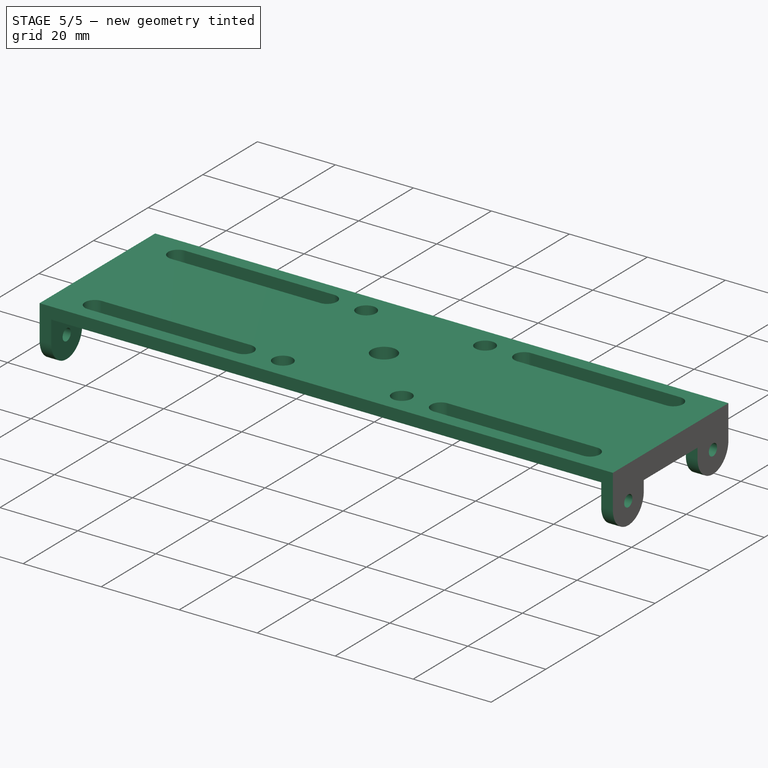
[diagram: stage 5 of 5 — iso view after this stage's code; geometry added in this stage tinted green]
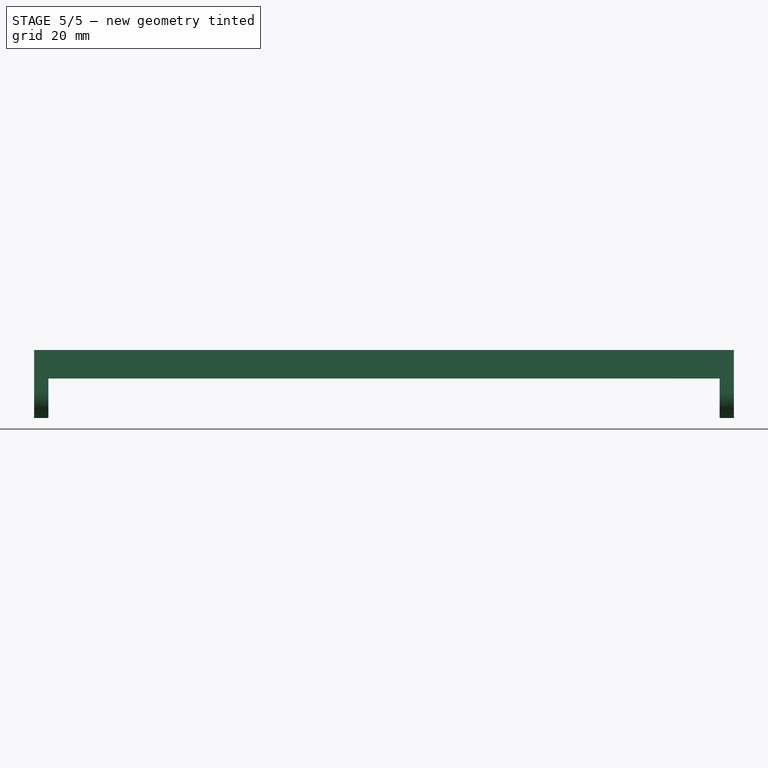
[diagram: stage 5 of 5 — front view after this stage's code; geometry added in this stage tinted green]
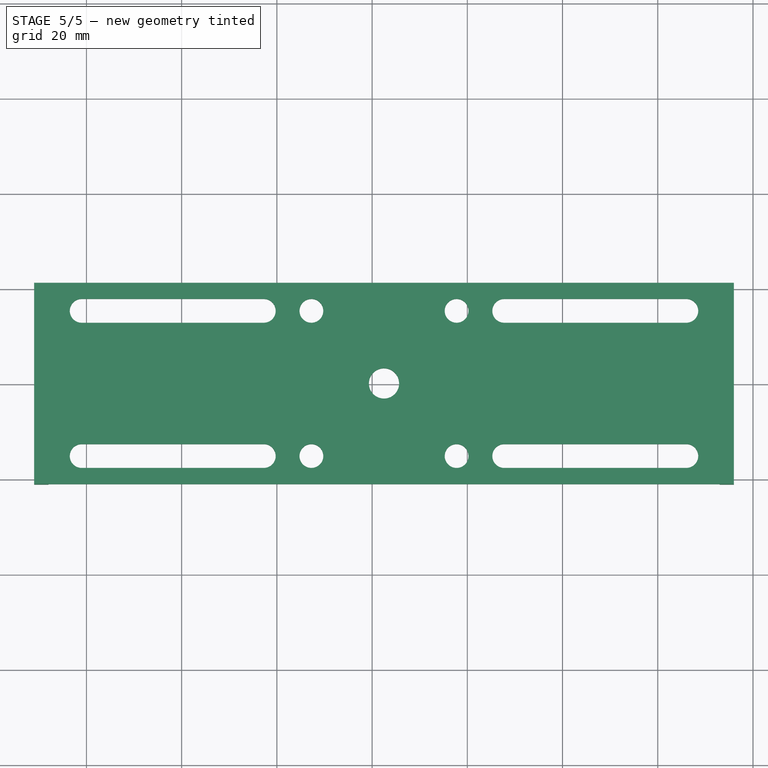
[diagram: stage 5 of 5 — top view after this stage's code; geometry added in this stage tinted green]
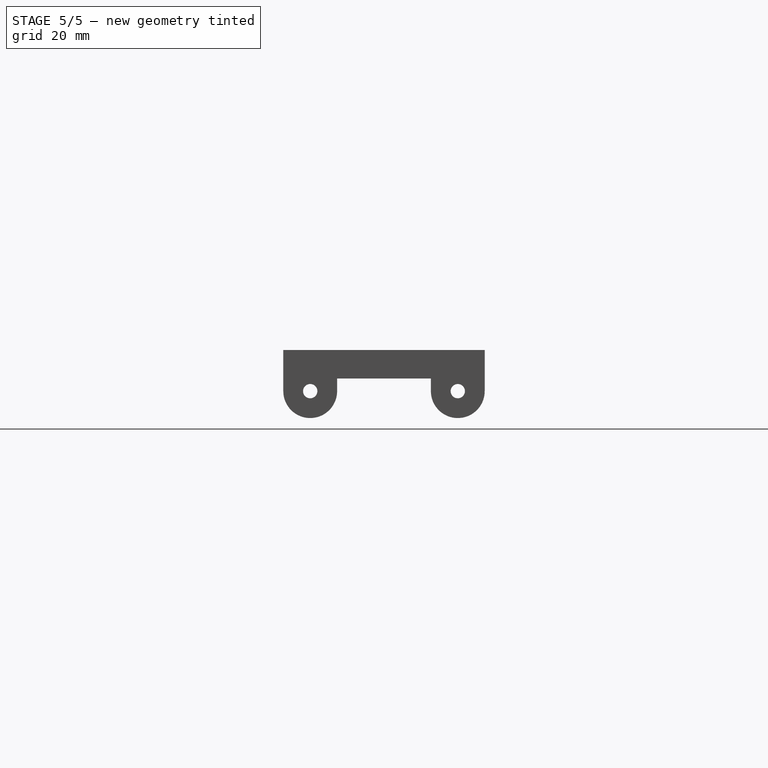
[diagram: stage 5 of 5 — right view after this stage's code; geometry added in this stage tinted green]
FEATURE [PartDesign::SubShapeBinder] Binder014
  BindCopyOnChange = 0
  BindMode = 0
  ClaimChildren = false
  Context = -> Body005 [Binder014.]
  Fuse = false
  MakeFace = true
  OffsetFill = false
  OffsetIntersection = false
  OffsetJoinType = 0
  OffsetOpenResult = false
  PartialLoad = false
  Relative = true
  Support = -> [Body004[SubtractiveLoft.Face5],Binder019]
  _Version = 2
FEATURE [PartDesign::SubShapeBinder] Binder015
  BindCopyOnChange = 0
  BindMode = 0
  ClaimChildren = false
  Context = -> Body006 [Binder015.]
  Fuse = false
  MakeFace = true
  OffsetFill = false
  OffsetIntersection = false
  OffsetJoinType = 0
  OffsetOpenResult = false
  PartialLoad = false
  Relative = true
  Support = -> [Body004[SubtractiveLoft.Face5]]
  _Version = 2
FEATURE [Sketcher::SketchObject] Sketch037
  ExternalGeometry = -> [Binder015]
  FullyConstrained = true
  MapMode = 5
  Placement = pos=(-64,0,0) rot=(0.57735,-0.57735,-0.57735;2.0944rad)
  Support = -> [Binder015]
  sketch-geometry (14):
    g0: ArcOfCircle CenterX=-15.5 CenterY=-134.35 CenterZ=0 NormalX=0 NormalY=0 NormalZ=1 AngleXU=0 Radius=5.65 StartAngle=3.14159 EndAngle=4.71239
    g1: LineSegment StartX=-21.15 StartY=-134.35 StartZ=0 EndX=-21.15 EndY=-128.7 EndZ=0
    g2: LineSegment StartX=-21.15 StartY=-128.7 StartZ=0 EndX=21.15 EndY=-128.7 EndZ=0
    g3: LineSegment StartX=21.15 StartY=-128.7 StartZ=0 EndX=21.15 EndY=-134.35 EndZ=0
    g4: ArcOfCircle CenterX=15.5 CenterY=-134.35 CenterZ=0 NormalX=0 NormalY=0 NormalZ=1 AngleXU=0 Radius=5.65 StartAngle=3.14159 EndAngle=4.71239
    g5: ArcOfCircle CenterX=-15.5 CenterY=-134.35 CenterZ=0 NormalX=0 NormalY=0 NormalZ=1 AngleXU=0 Radius=5.65 StartAngle=4.71239 EndAngle=6.28319
    g6: LineSegment StartX=15.5 StartY=-134.35 StartZ=0 EndX=21.15 EndY=-134.35 EndZ=0
    g7: LineSegment StartX=-9.85 StartY=-134.35 StartZ=0 EndX=-9.85 EndY=-131.7 EndZ=0
    g8: LineSegment StartX=-9.85 StartY=-131.7 StartZ=0 EndX=9.85 EndY=-131.7 EndZ=0
    g9: LineSegment StartX=9.85 StartY=-131.7 StartZ=0 EndX=9.85 EndY=-134.35 EndZ=0
    g10: LineSegment StartX=15.5 StartY=-134.35 StartZ=0 EndX=15.5 EndY=-128.7 EndZ=0
    g11: ArcOfCircle CenterX=15.5 CenterY=-134.35 CenterZ=0 NormalX=0 NormalY=0 NormalZ=1 AngleXU=0 Radius=5.65 StartAngle=4.71239 EndAngle=6.28319
    g12: Circle CenterX=15.5 CenterY=-134.35 CenterZ=0 NormalX=0 NormalY=0 NormalZ=1 AngleXU=0 Radius=1.5
    g13: Circle CenterX=-15.5 CenterY=-134.35 CenterZ=0 NormalX=0 NormalY=0 NormalZ=1 AngleXU=0 Radius=1.5
  constraints (33):
    c: Coincident(g0,g-5)
    c: Coincident(g0,g-5)
    c: Vertical(g1)
    c: Coincident(g2,g1)
    c: Horizontal(g2)
    c: Vertical(g3)
    c: Coincident(g5,g0)
    c: Coincident(g5,g0)
    c: Coincident(g3,g2)
    c: Vertical(g7)
    c: Coincident(g8,g7)
    c: Horizontal(g8)
    c: Coincident(g9,g8)
    c: Vertical(g9)
    c: Distance(g8,g2) = 3
    c: Tangent(g9,g4) = -1.5708
    c: Tangent(g7,g5) = -1.5708
    c: PointOnObject(g10,g2)
    c: Vertical(g10)
    c: Equal(g10,g6)
    c: Coincident(g3,g6)
    c: Coincident(g3,g-6)
    c: Coincident(g6,g-6)
    c: Coincident(g4,g-6)
    c: Tangent(g1,g0) = 1.5708
    c: Coincident(g11,g4)
    c: Tangent(g11,g3) = 1.5708
    c: Coincident(g10,g4)
    c: Coincident(g11,g4)
    c: Coincident(g12,g4)
    c: Tangent(g12,g-7)
    c: Coincident(g13,g0)
    c: Tangent(g13,g-4)
FEATURE [PartDesign::Pad] Pad015
  Direction = (-1,0,0)
  Length = 3
  Length2 = 10
  Profile = -> Sketch037
  ReferenceAxis = -> Sketch037 [N_Axis]
  Type = 0
FEATURE [PartDesign::SubShapeBinder] Binder016
  BindCopyOnChange = 0
  BindMode = 0
  ClaimChildren = false
  Context = -> Body006 [Binder016.]
  Fuse = false
  MakeFace = true
  OffsetFill = false
  OffsetIntersection = false
  OffsetJoinType = 0
  OffsetOpenResult = false
  PartialLoad = false
  Relative = true
  Support = -> [Body005[Pad014.Face5]]
  _Version = 2
FEATURE [Sketcher::SketchObject] Sketch038
  ExternalGeometry = -> [Binder016,Pad015]
  FullyConstrained = true
  MapMode = 5
  Placement = pos=(0,0,-128.7) rot=(0,0,1;0rad)
  Support = -> [Pad015]
  sketch-geometry (4):
    g0: LineSegment StartX=-64 StartY=21.15 StartZ=0 EndX=-211 EndY=21.15 EndZ=0
    g1: LineSegment StartX=-211 StartY=21.15 StartZ=0 EndX=-211 EndY=-21.15 EndZ=0
    g2: LineSegment StartX=-211 StartY=-21.15 StartZ=0 EndX=-64 EndY=-21.15 EndZ=0
    g3: LineSegment StartX=-64 StartY=-21.15 StartZ=0 EndX=-64 EndY=21.15 EndZ=0
  constraints (9):
    c: Coincident(g0,g1)
    c: Coincident(g1,g2)
    c: Coincident(g2,g3)
    c: Coincident(g3,g0)
    c: Horizontal(g2)
    c: Vertical(g1)
    c: Coincident(g0,g-5)
    c: Coincident(g2,g-6)
    c: Coincident(g0,g-3)
FEATURE [PartDesign::Pad] Pad016
  BaseFeature = -> Pad015
  Direction = (0,0,1)
  Length = 3
  Length2 = 10
  Profile = -> Sketch038
  ReferenceAxis = -> Sketch038 [N_Axis]
  Type = 0
FEATURE [PartDesign::Body] Body002  label="Static-Bridge"
  Group = -> [Binder001,Sketch021,Pad008,Sketch022,Pad009,Sketch023,Pocket,Sketch044,Sketch045,DatumPlane,Mirrored]
  Origin = -> Origin002
  Tip = -> Mirrored
FEATURE [Sketcher::SketchObject] Sketch046
  ExternalGeometry = -> [Pad016]
  FullyConstrained = true
  MapMode = 5
  Placement = pos=(0,0,-128.7) rot=(1,0,0;3.14159rad)
  Support = -> [Pad016]
  sketch-geometry (1):
    g0: LineSegment StartX=-137.5 StartY=-21.15 StartZ=0 EndX=-137.5 EndY=0 EndZ=0
  constraints (3):
    c: PointOnObject(g0,g-1)
    c: Vertical(g0)
    c: Symmetric(g-6,g-7,g0)
FEATURE [Sketcher::SketchObject] Sketch047
  ExternalGeometry = -> [Sketch046,Pad016]
  FullyConstrained = true
  MapMode = 5
  Placement = pos=(0,-21.15,0) rot=(1,0,0;1.5708rad)
  Support = -> [Pad016]
  sketch-geometry (2):
    g0: LineSegment StartX=-137.5 StartY=-128.7 StartZ=0 EndX=-137.5 EndY=-127.2 EndZ=0
    g1: LineSegment StartX=-137.5 StartY=-127.2 StartZ=0 EndX=-137.5 EndY=-125.7 EndZ=0
  constraints (5):
    c: Coincident(g0,g-3)
    c: Vertical(g0)
    c: Coincident(g1,g0)
    c: PointOnObject(g1,g-4)
    c: Symmetric(g1,g0,g1)
FEATURE [PartDesign::Plane] DatumPlane001
  Length = 67.4471
  MapMode = 13
  Placement = pos=(-137.5,-7.05,-127.2) rot=(0.57735,-0.57735,-0.57735;2.0944rad)
  ResizeMode = 0
  Support = -> [Sketch047,Sketch046]
  Width = 169.647
FEATURE [PartDesign::Mirrored] Mirrored001
  BaseFeature = -> Pad016
  MirrorPlane = -> DatumPlane001
  Originals = -> [Pad015]
FEATURE [PartDesign::SubShapeBinder] Binder019
  BindCopyOnChange = 0
  BindMode = 0
  ClaimChildren = false
  Context = -> Body005 [Binder019.]
  Fuse = false
  MakeFace = true
  OffsetFill = false
  OffsetIntersection = false
  OffsetJoinType = 0
  OffsetOpenResult = false
  PartialLoad = false
  Relative = true
  Support = -> [Body003[AdditiveLoft001.Face22]]
  _Version = 2
FEATURE [Sketcher::SketchObject] Sketch049
  AttachmentOffset = pos=(0,0,1) rot=(0,0,1;0rad)
  ExternalGeometry = -> [Binder014]
  FullyConstrained = true
  MapMode = 5
  Placement = pos=(-214,-4.0549e-12,1.05348e-10) rot=(0.57735,0.57735,0.57735;2.0944rad)
  Support = -> [Binder014]
  sketch-geometry (19):
    g0: Circle CenterX=0 CenterY=0 CenterZ=0 NormalX=0 NormalY=0 NormalZ=1 AngleXU=0 Radius=2.5
    g1: LineSegment StartX=-15.5 StartY=21.15 StartZ=0 EndX=15.5 EndY=21.15 EndZ=0
    g2: ArcOfCircle CenterX=-15.5 CenterY=-31.15 CenterZ=0 NormalX=0 NormalY=0 NormalZ=1 AngleXU=0 Radius=1.5 StartAngle=-9e-16 EndAngle=3.14159
    g3: ArcOfCircle CenterX=-15.5 CenterY=-129.35 CenterZ=0 NormalX=0 NormalY=0 NormalZ=1 AngleXU=0 Radius=1.5 StartAngle=3.14159 EndAngle=6.28319
    g4: LineSegment StartX=-17 StartY=-31.15 StartZ=0 EndX=-17 EndY=-129.35 EndZ=0
    g5: LineSegment StartX=-14 StartY=-129.35 StartZ=0 EndX=-14 EndY=-31.15 EndZ=0
    g6: ArcOfCircle CenterX=15.5 CenterY=-129.35 CenterZ=0 NormalX=0 NormalY=0 NormalZ=1 AngleXU=0 Radius=1.5 StartAngle=3.14159 EndAngle=6.28319
    g7: ArcOfCircle CenterX=15.5 CenterY=-31.15 CenterZ=0 NormalX=0 NormalY=0 NormalZ=1 AngleXU=0 Radius=1.5 StartAngle=-9e-16 EndAngle=3.14159
    g8: LineSegment StartX=17 StartY=-129.35 StartZ=0 EndX=17 EndY=-31.15 EndZ=0
    g9: LineSegment StartX=14 StartY=-31.15 StartZ=0 EndX=14 EndY=-129.35 EndZ=0
    g10: ArcOfCircle CenterX=-15.5 CenterY=15.5 CenterZ=0 NormalX=0 NormalY=0 NormalZ=1 AngleXU=0 Radius=5.65 StartAngle=1.5708 EndAngle=3.14159
    g11: ArcOfCircle CenterX=15.5 CenterY=15.5 CenterZ=0 NormalX=0 NormalY=0 NormalZ=1 AngleXU=0 Radius=5.65 StartAngle=-9e-16 EndAngle=1.5708
    g12: ArcOfCircle CenterX=-15.5 CenterY=-134.35 CenterZ=0 NormalX=0 NormalY=0 NormalZ=1 AngleXU=0 Radius=5.65 StartAngle=3.14159 EndAngle=4.71239
    g13: LineSegment StartX=-21.15 StartY=15.5 StartZ=0 EndX=-21.15 EndY=-134.35 EndZ=0
    g14: Circle CenterX=-15.5 CenterY=-134.35 CenterZ=0 NormalX=0 NormalY=0 NormalZ=1 AngleXU=0 Radius=1.5
    g15: Circle CenterX=15.5 CenterY=-134.35 CenterZ=0 NormalX=0 NormalY=0 NormalZ=1 AngleXU=0 Radius=1.5
    g16: LineSegment StartX=-15.5 StartY=-140 StartZ=0 EndX=15.5 EndY=-140 EndZ=0
    g17: LineSegment StartX=21.15 StartY=-134.35 StartZ=0 EndX=21.15 EndY=15.5 EndZ=0
    g18: ArcOfCircle CenterX=15.5 CenterY=-134.35 CenterZ=0 NormalX=0 NormalY=0 NormalZ=1 AngleXU=0 Radius=5.65 StartAngle=4.71239 EndAngle=6.28319
  constraints (38):
    c: Coincident(g0,g-3)
    c: Tangent(g0,g-3)
    c: Coincident(g1,g-7)
    c: Coincident(g1,g-5)
    c: Tangent(g2,g4) = -1.5708
    c: Tangent(g4,g3) = -1.5708
    c: Tangent(g3,g5) = -1.5708
    c: Tangent(g5,g2) = -1.5708
    c: Equal(g2,g3)
    c: Coincident(g2,g-9)
    c: Coincident(g3,g-14)
    c: Equal(g-14,g3)
    c: Tangent(g6,g8) = -1.5708
    c: Tangent(g8,g7) = -1.5708
    c: Tangent(g7,g9) = -1.5708
    c: Tangent(g9,g6) = -1.5708
    c: Equal(g6,g7)
    c: Coincident(g6,g-11)
    c: Coincident(g7,g-10)
    c: Equal(g7,g-10)
    c: Coincident(g10,g-5)
    c: Tangent(g10,g1) = 1.5708
    c: Coincident(g11,g-7)
    c: Tangent(g11,g1) = 1.5708
    c: Coincident(g12,g-16)
    c: Coincident(g12,g-16)
    c: Coincident(g13,g10)
    c: Tangent(g13,g12) = -1.5708
    c: Coincident(g14,g12)
    c: Tangent(g14,g-13)
    c: Coincident(g15,g-17)
    c: Coincident(g16,g12)
    c: Coincident(g16,g-17)
    c: Coincident(g17,g-17)
    c: Coincident(g17,g11)
    c: Coincident(g18,g16)
    c: Tangent(g18,g17) = -1.5708
    c: Equal(g15,g-12)
FEATURE [PartDesign::Pad] Pad019
  Direction = (1,1.89e-14,-4.923e-13)
  Length = 3
  Length2 = 10
  Profile = -> Sketch049
  ReferenceAxis = -> Sketch049 [N_Axis]
  Type = 0
FEATURE [Sketcher::SketchObject] Sketch050
  ExternalGeometry = -> [Binder019]
  FullyConstrained = true
  MapMode = 5
  Placement = pos=(-214,-4.096e-12,1.05351e-10) rot=(0.57735,-0.57735,-0.57735;2.0944rad)
  Support = -> [Pad019]
  sketch-geometry (2):
    g0: Circle CenterX=0 CenterY=0 CenterZ=0 NormalX=0 NormalY=0 NormalZ=1 AngleXU=0 Radius=2.5
    g1: Circle CenterX=0 CenterY=0 CenterZ=0 NormalX=0 NormalY=0 NormalZ=1 AngleXU=0 Radius=6
  constraints (4):
    c: Coincident(g0,g-4)
    c: Tangent(g0,g-3)
    c: Coincident(g1,g0)
    c: Tangent(g1,g-4)
FEATURE [PartDesign::Pad] Pad020
  BaseFeature = -> Pad019
  Direction = (-1,-1.9e-14,4.922e-13)
  Length = 1
  Length2 = 10
  Profile = -> Sketch050
  ReferenceAxis = -> Sketch050 [N_Axis]
  Type = 0
FEATURE [PartDesign::Body] Body004  label="Rot-Handle-1"
  Group = -> [Binder008,Sketch028,Binder009,Pad012,Binder010,Sketch029,Binder011,Sketch030,AdditiveLoft002,Binder012,Sketch032,Sketch033,SubtractiveLoft,Binder018,Sketch041,Pad018,Sketch042,Pocket002,Fillet001,Sketch051,Sketch052,AdditiveLoft003,Sketch053,Pocket003,Sketch054,Pocket004,Sketch055,Pocket005]
  Origin = -> Origin004
  Tip = -> Pocket005
FEATURE [PartDesign::SubShapeBinder] Binder021
  BindCopyOnChange = 0
  BindMode = 0
  ClaimChildren = false
  Context = -> Body006 [Binder021.]
  Fuse = false
  MakeFace = true
  OffsetFill = false
  OffsetIntersection = false
  OffsetJoinType = 0
  OffsetOpenResult = false
  PartialLoad = false
  Relative = true
  Support = -> [Body002[Mirrored.Face48]]
  _Version = 2
FEATURE [Sketcher::SketchObject] Sketch056
  ExternalGeometry = -> [Binder021,Mirrored001]
  FullyConstrained = true
  MapMode = 5
  Placement = pos=(0,0,-125.7) rot=(0,0,1;0rad)
  Support = -> [Mirrored001]
  sketch-geometry (31):
    g0: Circle CenterX=-152.75 CenterY=15.25 CenterZ=0 NormalX=0 NormalY=0 NormalZ=1 AngleXU=0 Radius=2.5
    g1: Circle CenterX=-122.25 CenterY=15.25 CenterZ=0 NormalX=0 NormalY=0 NormalZ=1 AngleXU=0 Radius=2.5
    g2: Circle CenterX=-122.25 CenterY=-15.25 CenterZ=0 NormalX=0 NormalY=0 NormalZ=1 AngleXU=0 Radius=2.5
    g3: Circle CenterX=-152.75 CenterY=-15.25 CenterZ=0 NormalX=0 NormalY=0 NormalZ=1 AngleXU=0 Radius=2.5
    g4: Circle CenterX=-137.5 CenterY=0 CenterZ=0 NormalX=0 NormalY=0 NormalZ=1 AngleXU=0 Radius=3.175
    g5: GeomPoint X=-211 Y=0 Z=0
    g6: GeomPoint X=-64 Y=0 Z=0
    g7: ArcOfCircle CenterX=-162.75 CenterY=15.25 CenterZ=0 NormalX=0 NormalY=0 NormalZ=1 AngleXU=0 Radius=2.5 StartAngle=4.71239 EndAngle=7.85398
    g8: ArcOfCircle CenterX=-201 CenterY=15.25 CenterZ=0 NormalX=0 NormalY=0 NormalZ=1 AngleXU=0 Radius=2.5 StartAngle=1.5708 EndAngle=4.71239
    g9: LineSegment StartX=-162.75 StartY=17.75 StartZ=0 EndX=-201 EndY=17.75 EndZ=0
    g10: LineSegment StartX=-201 StartY=12.75 StartZ=0 EndX=-162.75 EndY=12.75 EndZ=0
    g11: ArcOfCircle CenterX=-201 CenterY=-15.25 CenterZ=0 NormalX=0 NormalY=0 NormalZ=1 AngleXU=0 Radius=2.5 StartAngle=1.5708 EndAngle=4.71239
    g12: ArcOfCircle CenterX=-162.75 CenterY=-15.25 CenterZ=0 NormalX=0 NormalY=0 NormalZ=1 AngleXU=0 Radius=2.5 StartAngle=4.71239 EndAngle=7.85398
    g13: LineSegment StartX=-201 StartY=-17.75 StartZ=0 EndX=-162.75 EndY=-17.75 EndZ=0
    g14: LineSegment StartX=-162.75 StartY=-12.75 StartZ=0 EndX=-201 EndY=-12.75 EndZ=0
    g15: ArcOfCircle CenterX=-112.25 CenterY=-15.25 CenterZ=0 NormalX=0 NormalY=0 NormalZ=1 AngleXU=0 Radius=2.5 StartAngle=1.5708 EndAngle=4.71239
    g16: ArcOfCircle CenterX=-74 CenterY=-15.25 CenterZ=0 NormalX=0 NormalY=0 NormalZ=1 AngleXU=0 Radius=2.5 StartAngle=4.71239 EndAngle=7.85398
    g17: LineSegment StartX=-112.25 StartY=-17.75 StartZ=0 EndX=-74 EndY=-17.75 EndZ=0
    g18: LineSegment StartX=-74 StartY=-12.75 StartZ=0 EndX=-112.25 EndY=-12.75 EndZ=0
    g19: ArcOfCircle CenterX=-112.25 CenterY=15.25 CenterZ=0 NormalX=0 NormalY=0 NormalZ=1 AngleXU=0 Radius=2.5 StartAngle=1.5708 EndAngle=4.71239
    g20: ArcOfCircle CenterX=-74 CenterY=15.25 CenterZ=0 NormalX=0 NormalY=0 NormalZ=1 AngleXU=0 Radius=2.5 StartAngle=4.71239 EndAngle=7.85398
    g21: LineSegment StartX=-112.25 StartY=12.75 StartZ=0 EndX=-74 EndY=12.75 EndZ=0
    g22: LineSegment StartX=-74 StartY=17.75 StartZ=0 EndX=-112.25 EndY=17.75 EndZ=0
    g23: LineSegment StartX=-211 StartY=-15.25 StartZ=0 EndX=-64 EndY=-15.25 EndZ=0
    g24: LineSegment StartX=-211 StartY=15.25 StartZ=0 EndX=-64 EndY=15.25 EndZ=0
    g25: LineSegment StartX=-162.75 StartY=15.25 StartZ=0 EndX=-162.75 EndY=-15.25 EndZ=0
    g26: LineSegment StartX=-112.25 StartY=15.25 StartZ=0 EndX=-112.25 EndY=-15.25 EndZ=0
    g27: LineSegment StartX=-201 StartY=-12.75 StartZ=0 EndX=-211 EndY=-12.75 EndZ=0
    g28: LineSegment StartX=-74 StartY=-12.75 StartZ=0 EndX=-64 EndY=-12.75 EndZ=0
    g29: LineSegment StartX=-152.75 StartY=15.25 StartZ=0 EndX=-152.75 EndY=-15.25 EndZ=0
    g30: LineSegment StartX=-152.75 StartY=0 StartZ=0 EndX=-162.75 EndY=0 EndZ=0
  constraints (78):
    c: Coincident(g0,g-3)
    c: Coincident(g1,g-4)
    c: Coincident(g2,g-6)
    c: Coincident(g3,g-5)
    c: PointOnObject(g4,g-1)
    c: Diameter(g4) = 6.35
    c: PointOnObject(g5,g-7)
    c: PointOnObject(g6,g-8)
    c: PointOnObject(g6,g-1)
    c: Symmetric(g6,g5,g4)
    c: Tangent(g7,g9) = -1.5708
    c: Tangent(g9,g8) = -1.5708
    c: Tangent(g8,g10) = -1.5708
    c: Tangent(g10,g7) = -1.5708
    c: Equal(g7,g8)
    c: Horizontal(g9)
    c: Tangent(g11,g13) = -1.5708
    c: Tangent(g13,g12) = -1.5708
    c: Tangent(g12,g14) = -1.5708
    c: Tangent(g14,g11) = -1.5708
    c: Equal(g11,g12)
    c: Horizontal(g13)
    c: Tangent(g15,g17) = -1.5708
    c: Tangent(g17,g16) = -1.5708
    c: Tangent(g16,g18) = -1.5708
    c: Tangent(g18,g15) = -1.5708
    c: Equal(g15,g16)
    c: Horizontal(g17)
    c: Tangent(g19,g21) = -1.5708
    c: Tangent(g21,g20) = -1.5708
    c: Tangent(g20,g22) = -1.5708
    c: Tangent(g22,g19) = -1.5708
    c: Equal(g19,g20)
    c: Horizontal(g21)
    c: Equal(g22,g9)
    c: Equal(g9,g14)
    c: Equal(g14,g18)
    c: PointOnObject(g23,g-7)
    c: PointOnObject(g23,g-8)
    c: Horizontal(g23)
    c: PointOnObject(g2,g23)
    c: PointOnObject(g24,g-7)
    c: PointOnObject(g24,g-8)
    c: Horizontal(g24)
    c: PointOnObject(g1,g24)
    c: PointOnObject(g7,g24)
    c: PointOnObject(g20,g24)
    c: PointOnObject(g16,g23)
    c: PointOnObject(g12,g23)
    c: Equal(g16,g20)
    c: Equal(g20,g7)
    c: Equal(g7,g12)
    c: Equal(g2,g-6)
    c: Equal(g1,g-4)
    c: Equal(g2,g15)
    c: Coincident(g25,g12)
    c: Coincident(g26,g19)
    c: Coincident(g26,g15)
    c: Vertical(g26)
    c: Vertical(g25)
    c: Coincident(g25,g7)
    c: Coincident(g27,g11)
    c: PointOnObject(g27,g-7)
    c: Horizontal(g27)
    c: Coincident(g28,g16)
    c: PointOnObject(g28,g-8)
    c: Horizontal(g28)
    c: Equal(g28,g27)
    c: Distance(g27) = 10
    c: Coincident(g29,g0)
    c: Coincident(g29,g3)
    c: PointOnObject(g30,g29)
    c: PointOnObject(g30,g25)
    c: Horizontal(g30)
    c: Distance(g30) = 10
    c: PointOnObject(g30,g-1)
    c: Equal(g0,g-3)
    c: Equal(g3,g-5)
FEATURE [PartDesign::Pocket] Pocket006
  BaseFeature = -> Mirrored001
  Direction = (0,0,-1)
  Length = 5
  Length2 = 5
  Profile = -> Sketch056
  ReferenceAxis = -> Sketch056 [N_Axis]
  Type = 0
FEATURE [Sketcher::SketchObject] Sketch057
  ExternalGeometry = -> [Pocket006]
  FullyConstrained = true
  MapMode = 5
  Placement = pos=(0,0,-128.7) rot=(1,0,0;3.14159rad)
  Support = -> [Pocket006]
  sketch-geometry (13):
    g0: LineSegment StartX=-208 StartY=9.85 StartZ=0 EndX=-67 EndY=9.85 EndZ=0
    g1: LineSegment StartX=-67 StartY=9.85 StartZ=0 EndX=-67 EndY=6.075 EndZ=0
    g2: LineSegment StartX=-67 StartY=6.075 StartZ=0 EndX=-208 EndY=6.075 EndZ=0
    g3: LineSegment StartX=-208 StartY=6.075 StartZ=0 EndX=-208 EndY=9.85 EndZ=0
    g4: LineSegment StartX=-122.25 StartY=12.75 StartZ=0 EndX=-122.25 EndY=9.85 EndZ=0
    g5: LineSegment StartX=-137.5 StartY=6.075 StartZ=0 EndX=-137.5 EndY=3.175 EndZ=0
    g6: LineSegment StartX=-208 StartY=-9.85 StartZ=0 EndX=-67 EndY=-9.85 EndZ=0
    g7: LineSegment StartX=-67 StartY=-9.85 StartZ=0 EndX=-67 EndY=-6.075 EndZ=0
    g8: LineSegment StartX=-67 StartY=-6.075 StartZ=0 EndX=-208 EndY=-6.075 EndZ=0
    g9: LineSegment StartX=-208 StartY=-6.075 StartZ=0 EndX=-208 EndY=-9.85 EndZ=0
    g10: LineSegment StartX=-137.5 StartY=6.075 StartZ=0 EndX=-137.5 EndY=9.85 EndZ=0
    g11: LineSegment StartX=-137.5 StartY=-3.175 StartZ=0 EndX=-137.5 EndY=-6.075 EndZ=0
    g12: LineSegment StartX=-137.5 StartY=-6.075 StartZ=0 EndX=-137.5 EndY=-9.85 EndZ=0
  constraints (41):
    c: Coincident(g0,g1)
    c: Coincident(g1,g2)
    c: Coincident(g2,g3)
    c: Coincident(g3,g0)
    c: Horizontal(g0)
    c: Horizontal(g2)
    c: Vertical(g1)
    c: Vertical(g3)
    c: PointOnObject(g0,g-6)
    c: PointOnObject(g4,g-5)
    c: PointOnObject(g4,g0)
    c: PointOnObject(g5,g2)
    c: PointOnObject(g5,g-3)
    c: Vertical(g5)
    c: Vertical(g4)
    c: Perpendicular(g-5,g4)
    c: Perpendicular(g-3,g5)
    c: Equal(g5,g4)
    c: Coincident(g6,g7)
    c: Coincident(g7,g8)
    c: Coincident(g8,g9)
    c: Coincident(g9,g6)
    c: Horizontal(g6)
    c: Horizontal(g8)
    c: Vertical(g7)
    c: Vertical(g9)
    c: PointOnObject(g6,g-6)
    c: PointOnObject(g7,g-7)
    c: Coincident(g10,g5)
    c: PointOnObject(g10,g0)
    c: Vertical(g10)
    c: PointOnObject(g11,g-3)
    c: PointOnObject(g11,g8)
    c: Vertical(g11)
    c: Coincident(g12,g11)
    c: PointOnObject(g12,g6)
    c: Vertical(g12)
    c: Equal(g12,g10)
    c: Equal(g11,g5)
    c: Perpendicular(g-3,g11)
    c: Coincident(g0,g-7)
FEATURE [PartDesign::Pad] Pad021
  BaseFeature = -> Pocket006
  Direction = (0,0,-1)
  Length = 3
  Length2 = 10
  Profile = -> Sketch057
  ReferenceAxis = -> Sketch057 [N_Axis]
  Type = 0
FEATURE [PartDesign::Body] Body006  label="Rot-Bridge"
  Group = -> [Binder015,Sketch037,Pad015,Binder016,Sketch038,Pad016,Sketch046,Sketch047,DatumPlane001,Mirrored001,Binder021,Sketch056,Pocket006,Sketch057,Pad021]
  Origin = -> Origin006
  Tip = -> Pad021
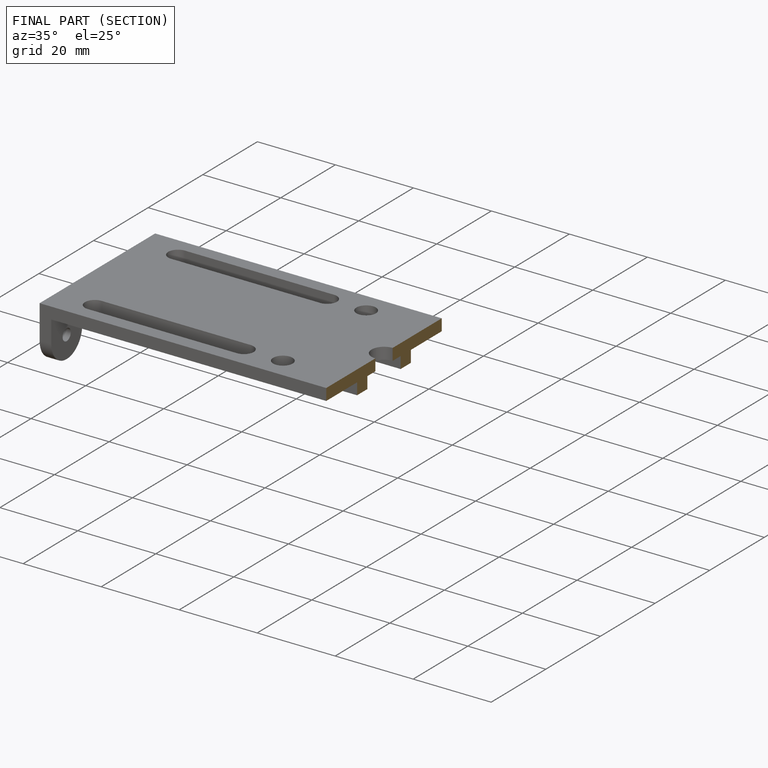
[diagram: finished part — half-section view (interior)]
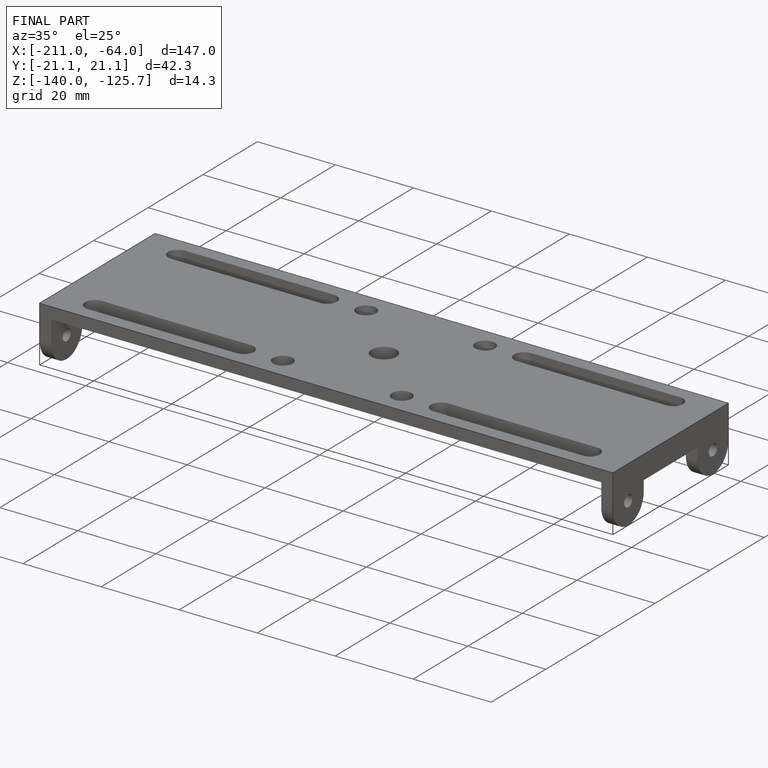
[diagram: finished part — iso view with bounding-box wireframe]
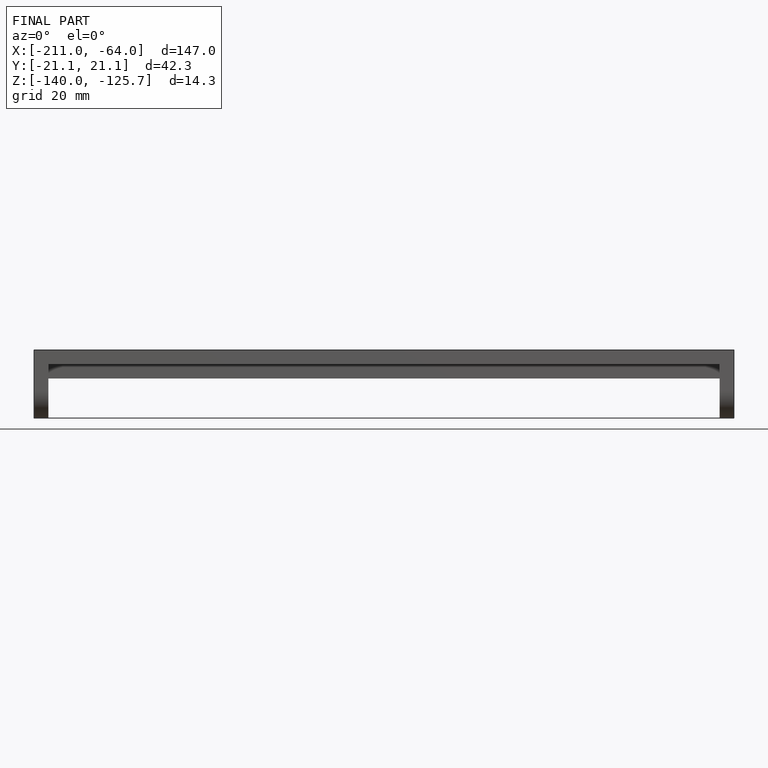
[diagram: finished part — front view with bounding-box wireframe]
